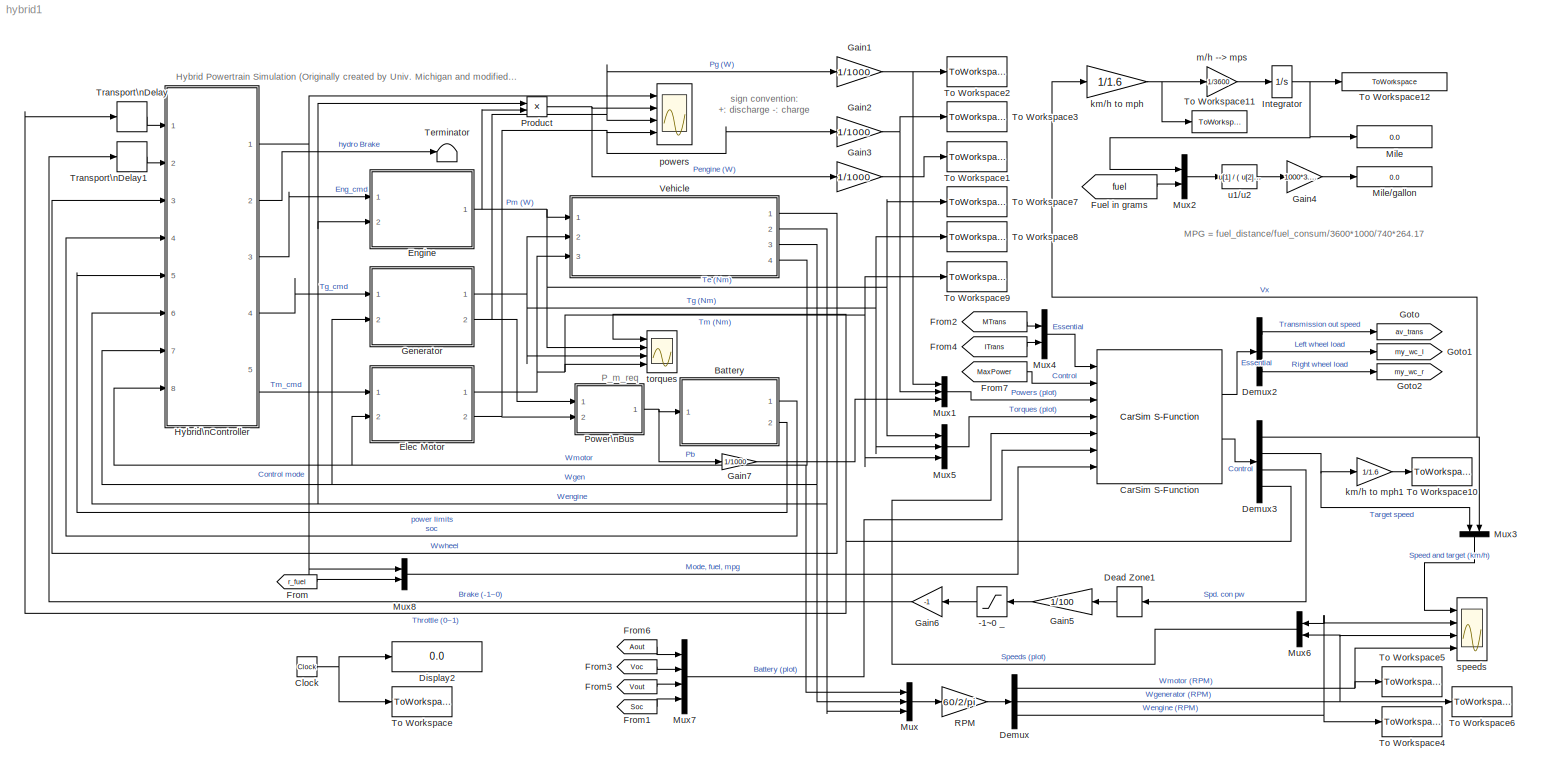
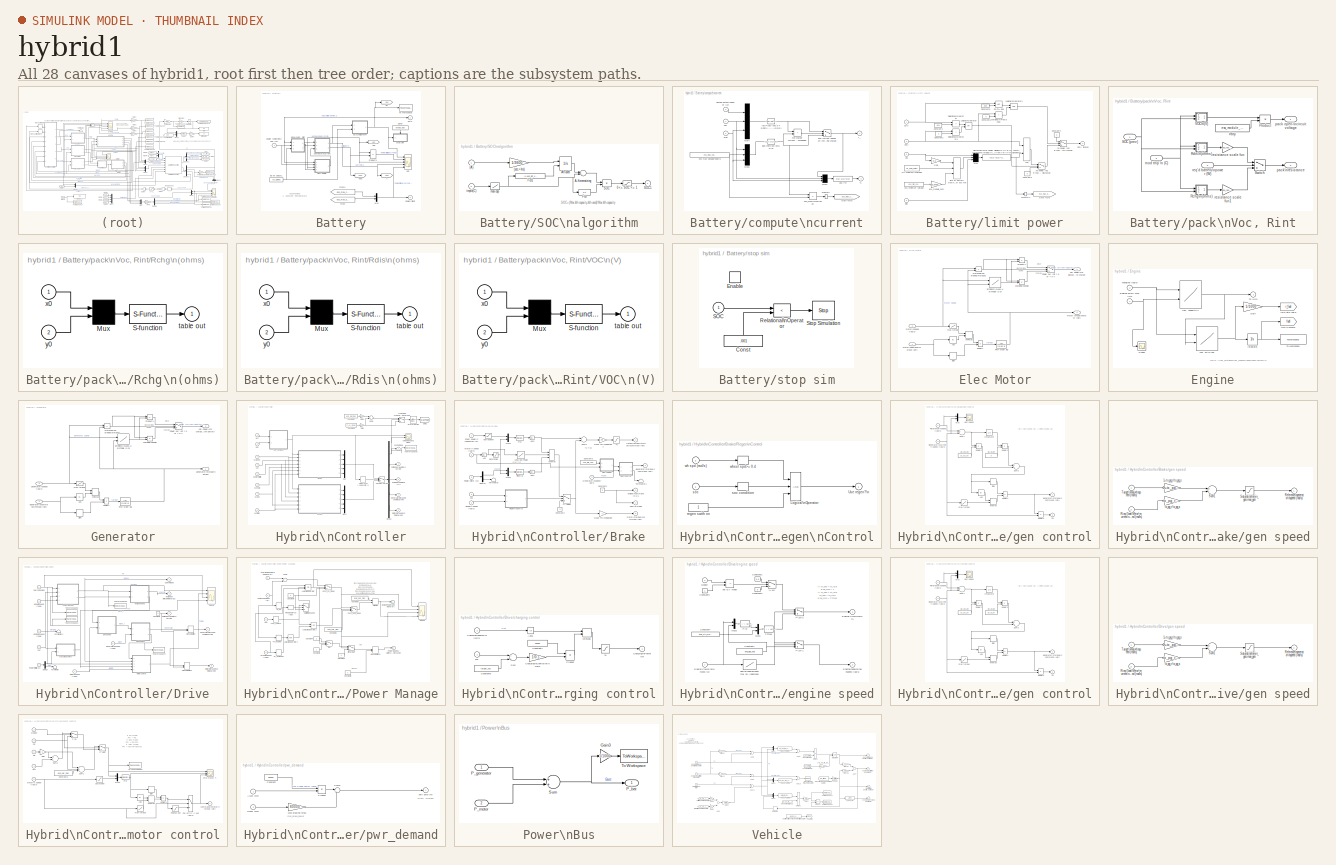
[diagram: thumbnail index - all 28 canvases of the model, root first then tree order]
MODEL hybrid1
KIND model
CONFIG PreLoadFcn = cd Extensions/Simulink/hybrid1	\nhybrid1_sim_init	\ncd ../../..
BLOCK [Saturate] -1~0 _
  InputPortMap = u0
  LowerLimit = -1
  Ports = [1, 1]
  SID = 441
  UpperLimit = 0
BLOCK [SubSystem] Battery
  Ports = [1, 2]
  RequestExecContextInheritance = off
  SID = 1
  ShowPortLabels = none
BLOCK [Goto] Battery/A
  GotoTag = Aout
  SID = 473
  TagVisibility = global
BLOCK [Constant] Battery/Const
  SID = 3
  Value = enable_stop
BLOCK [From] Battery/From
  CloseFcn = tagdialog Close
  GotoTag = ess_max_dis_pwr
  SID = 4
  TagVisibility = global
BLOCK [From] Battery/From1
  CloseFcn = tagdialog Close
  GotoTag = ess_max_chg_pwr
  SID = 5
  TagVisibility = global
BLOCK [Mux] Battery/Mux
  DisplayOption = bar
  Inputs = 2
  Ports = [2, 1]
  SID = 6
BLOCK [Outport] Battery/Power\nlimit
  IconDisplay = Port number
  InitialOutput = 0
  Port = 2
  SID = 17
BLOCK [Product] Battery/Product1
  Inputs = /*
  Ports = [2, 1]
  RndMeth = Floor
  SID = 7
BLOCK [Outport] Battery/SOC
  IconDisplay = Port number
  InitialOutput = 0
  SID = 16
BLOCK [SubSystem] Battery/SOC\nalgorithm
  AncestorBlock = lib_energy_storage/Ess Choices/energy\nstorage <ess>/SOC\nalgorithm
  Ports = [2, 1]
  RequestExecContextInheritance = off
  SID = 8
  ShowPortLabels = none
BLOCK [Inport] Battery/SOC\nalgorithm/(A)
  IconDisplay = Port number
  SID = 8:1
BLOCK [Gain] Battery/SOC\nalgorithm/(sec->hrs)
  Gain = 1/3600
  SID = 8:3
BLOCK [Saturate] Battery/SOC\nalgorithm/0 <= SOC <= 1
  InputPortMap = u0
  LowerLimit = 0
  Ports = [1, 1]
  SID = 8:4
  UpperLimit = 1
BLOCK [Sum] Battery/SOC\nalgorithm/A-h\nremaining
  Inputs = -+
  Ports = [2, 1]
  SID = 8:5
BLOCK [Integrator] Battery/SOC\nalgorithm/Ah used
  InitialCondition = (1-ess_init_soc)*ess_max_ah_cap
  InitialConditionSource = external
  Ports = [2, 1]
  SID = 8:6
BLOCK [Fcn] Battery/SOC\nalgorithm/Fcn
  Expr = 1/u
  SID = 8:7
BLOCK [Fcn] Battery/SOC\nalgorithm/Fcn1
  Expr = (1-ess_init_soc)*u
  SID = 8:8
BLOCK [Product] Battery/SOC\nalgorithm/SOC
  Ports = [2, 1]
  RndMeth = Floor
  SID = 8:9
BLOCK [Outport] Battery/SOC\nalgorithm/SOC1
  IconDisplay = Port number
  InitialOutput = 0
  SID = 8:11
BLOCK [Lookup] Battery/SOC\nalgorithm/max cap
  InputValues = ess_tmp
  SID = 8:10
  Table = ess_max_ah_cap*ess_cap_scale
BLOCK [Inport] Battery/SOC\nalgorithm/tmp\n(C)
  IconDisplay = Port number
  Port = 2
  SID = 8:2
BLOCK [Goto] Battery/So
  GotoTag = Soc
  SID = 474
  TagVisibility = global
BLOCK [ToWorkspace] Battery/To Workspace
  MaxDataPoints = inf
  Ports = [1]
  SID = 9
  SampleTime = time_step
  VariableName = output_soc
BLOCK [Goto] Battery/Voc
  GotoTag = Voc
  SID = 471
  TagVisibility = global
BLOCK [Goto] Battery/Vout
  GotoTag = Vout
  SID = 472
  TagVisibility = global
BLOCK [Scope] Battery/bat
  DataFormat = StructureWithTime
  Floating = off
  LimitDataPoints = off
  NumInputPorts = 5
  Ports = [5]
  SID = 10
  SampleTime = 0
  TimeRange = 30
  YMax = 0.6200000000000001~1.2~309.2~100~50000
  YMin = 0.5300000000000001~0.6000000000000001~308.8~-50~-50000
BLOCK [SubSystem] Battery/compute\ncurrent
  AncestorBlock = lib_energy_storage/Ess Choices/energy\nstorage <ess>/compute\ncurrent
  Ports = [3, 2]
  RequestExecContextInheritance = off
  SID = 11
  ShowPortLabels = none
BLOCK [Goto] Battery/compute\ncurrent/Goto <cs>2
  GotoTag = ess_max_chg_pwr
  SID = 11:4
  TagVisibility = global
BLOCK [Outport] Battery/compute\ncurrent/I_
  IconDisplay = Port number
  InitialOutput = 0
  SID = 11:16
BLOCK [Fcn] Battery/compute\ncurrent/Ibty=(Voc-(Voc^2-4RPbty)^.5)\n       -----------------------------\n(2*R)
  Expr = (u[2]-(u[2]^2-4*u[1]*u[3])^.5)/(2*u[3])
  SID = 11:5
BLOCK [Memory] Battery/compute\ncurrent/Memory
  SID = 11:6
BLOCK [Mux] Battery/compute\ncurrent/Mux3
  Inputs = 3
  Ports = [3, 1]
  SID = 11:7
BLOCK [Mux] Battery/compute\ncurrent/Mux4
  Inputs = 3
  Ports = [3, 1]
  SID = 11:8
BLOCK [Mux] Battery/compute\ncurrent/Mux5
  Inputs = 3
  Ports = [3, 1]
  SID = 11:9
BLOCK [Product] Battery/compute\ncurrent/Pch_max=Imax*Vmax
  Ports = [2, 1]
  RndMeth = Floor
  SID = 11:10
BLOCK [Inport] Battery/compute\ncurrent/Rint
  IconDisplay = Port number
  Port = 2
  SID = 11:2
BLOCK [Outport] Battery/compute\ncurrent/V_
  IconDisplay = Port number
  InitialOutput = 0
  Port = 2
  SID = 11:17
BLOCK [Inport] Battery/compute\ncurrent/Voc
  IconDisplay = Port number
  SID = 11:1
BLOCK [Fcn] Battery/compute\ncurrent/Voc-I*R
  Expr = u[2]-u[1]*u[3]
  SID = 11:11
BLOCK [Constant] Battery/compute\ncurrent/ess max voltage*#batts
  SID = 11:12
  Value = ess_max_volts*ess_module_num
BLOCK [Fcn] Battery/compute\ncurrent/iabs min=(Voc-Vmax)//R
  Expr = (u(1)-u(2))/u(3)
  SID = 11:13
BLOCK [Switch] Battery/compute\ncurrent/limit current based on \nmax voltage during charge
  SID = 11:14
  Threshold = eps
BLOCK [Inport] Battery/compute\ncurrent/limited output\npower (W)
  IconDisplay = Port number
  Port = 3
  SID = 11:3
BLOCK [RelationalOperator] Battery/compute\ncurrent/min charge current\nnot exceeded
  Operator = >
  Ports = [2, 1]
  SID = 11:15
BLOCK [Constant] Battery/do ex calcs?1
  SID = 12
  Value = ess_fixtemp
BLOCK [SubSystem] Battery/limit power
  AncestorBlock = lib_energy_storage/Ess Choices/energy\nstorage <ess>/limit power
  Ports = [4, 1]
  RequestExecContextInheritance = off
  SID = 13
  ShowPortLabels = none
BLOCK [Constant] Battery/limit power/Constant1
  SID = 13:5
  Value = eps
BLOCK [Constant] Battery/limit power/Constant2
  SID = 13:6
  Value = 0
BLOCK [Constant] Battery/limit power/Constant3
  SID = 13:7
  Value = 0
BLOCK [Constant] Battery/limit power/Constant4
  SID = 13:8
  Value = 0
BLOCK [Constant] Battery/limit power/Constant5
  SID = 13:9
  Value = .999
BLOCK [Constant] Battery/limit power/Constant6
  SID = 13:10
  Value = 0
BLOCK [Gain] Battery/limit power/Gain
  Gain = 0.5
  SID = 13:11
BLOCK [Goto] Battery/limit power/Goto <cs>2
  GotoTag = ess_max_dis_pwr
  SID = 13:12
  TagVisibility = global
BLOCK [Logic] Battery/limit power/Logical\nOperator
  Operator = OR
  Ports = [2, 1]
  SID = 13:13
BLOCK [Logic] Battery/limit power/Logical\nOperator1
  Ports = [2, 1]
  SID = 13:14
BLOCK [Memory] Battery/limit power/Memory1
  SID = 13:15
BLOCK [Mux] Battery/limit power/Mux
  Inputs = 3
  Ports = [3, 1]
  SID = 13:16
BLOCK [Inport] Battery/limit power/Pbty
  IconDisplay = Port number
  Port = 2
  SID = 13:2
BLOCK [Outport] Battery/limit power/Pbty, limited
  IconDisplay = Port number
  InitialOutput = 0
  SID = 13:29
BLOCK [RelationalOperator] Battery/limit power/Relational\nOperator
  Operator = >
  Ports = [2, 1]
  SID = 13:17
BLOCK [RelationalOperator] Battery/limit power/Relational\nOperator3
  Operator = <
  Ports = [2, 1]
  SID = 13:18
BLOCK [Inport] Battery/limit power/Rint
  IconDisplay = Port number
  Port = 4
  SID = 13:4
BLOCK [Inport] Battery/limit power/SOC
  IconDisplay = Port number
  SID = 13:1
BLOCK [RelationalOperator] Battery/limit power/SOC>=.999
  Ports = [2, 1]
  SID = 13:19
BLOCK [Inport] Battery/limit power/Voc
  IconDisplay = Port number
  Port = 3
  SID = 13:3
BLOCK [RelationalOperator] Battery/limit power/charging\n(Preq is neg)
  Operator = <
  Ports = [2, 1]
  SID = 13:20
BLOCK [Fcn] Battery/limit power/discharge\nmax power allowed\n(-0.1 is for safety, to prevent\ntaking the square of a tiny\n-ive # in I=I(P) elsewhere)
  Expr = (u[1]-u[2])*u[2]/u[3]-0.1
  SID = 13:21
BLOCK [Constant] Battery/limit power/ess minimum voltage
  SID = 13:22
  Value = ess_min_volts
BLOCK [Gain] Battery/limit power/ess_module_num
  Gain = ess_module_num
  SID = 13:23
BLOCK [MinMax] Battery/limit power/limit by battery max\nor min mc voltage\nor ess min
  Function = max
  Inputs = 3
  Ports = [3, 1]
  SID = 13:24
BLOCK [Constant] Battery/limit power/mc minimum\nvoltage
  SID = 13:25
  Value = m_min_volts
BLOCK [MinMax] Battery/limit power/min
  Inputs = 2
  Ports = [2, 1]
  SID = 13:26
BLOCK [Switch] Battery/limit power/no power req if\nSOC<0 and trying \nto discharge
  SID = 13:27
  Threshold = eps
BLOCK [Switch] Battery/limit power/no power req if\nSOC>.999 and trying \nto charge
  SID = 13:28
  Threshold = eps
BLOCK [SubSystem] Battery/pack\nVoc, Rint
  AncestorBlock = lib_energy_storage/Ess Choices/energy\nstorage <ess>/pack\nVoc, Rint
  Ports = [3, 2]
  RequestExecContextInheritance = off
  SID = 14
  ShowPortLabels = none
BLOCK [Constant] Battery/pack\nVoc, Rint/#bty
  SID = 14:4
  Value = ess_module_num
BLOCK [Product] Battery/pack\nVoc, Rint/Product
  Ports = [2, 1]
  RndMeth = Floor
  SID = 14:5
BLOCK [SubSystem] Battery/pack\nVoc, Rint/Rchg\n(ohms)
  Ports = [2, 1]
  RequestExecContextInheritance = off
  SID = 14:6
  ShowPortLabels = none
BLOCK [Mux] Battery/pack\nVoc, Rint/Rchg\n(ohms)/Mux
  Inputs = 2
  Ports = [2, 1]
  SID = 14:9
BLOCK [S-Function] Battery/pack\nVoc, Rint/Rchg\n(ohms)/S-function
  FunctionName = sftable2
  Parameters = xindex, yindex, table
  Ports = [1, 1]
  SID = 14:10
BLOCK [Outport] Battery/pack\nVoc, Rint/Rchg\n(ohms)/table out
  IconDisplay = Port number
  InitialOutput = 0
  SID = 14:11
BLOCK [Inport] Battery/pack\nVoc, Rint/Rchg\n(ohms)/x0
  IconDisplay = Port number
  SID = 14:7
BLOCK [Inport] Battery/pack\nVoc, Rint/Rchg\n(ohms)/y0
  IconDisplay = Port number
  Port = 2
  SID = 14:8
BLOCK [SubSystem] Battery/pack\nVoc, Rint/Rdis\n(ohms)
  Ports = [2, 1]
  RequestExecContextInheritance = off
  SID = 14:12
  ShowPortLabels = none
BLOCK [Mux] Battery/pack\nVoc, Rint/Rdis\n(ohms)/Mux
  Inputs = 2
  Ports = [2, 1]
  SID = 14:15
BLOCK [S-Function] Battery/pack\nVoc, Rint/Rdis\n(ohms)/S-function
  FunctionName = sftable2
  Parameters = xindex, yindex, table
  Ports = [1, 1]
  SID = 14:16
BLOCK [Outport] Battery/pack\nVoc, Rint/Rdis\n(ohms)/table out
  IconDisplay = Port number
  InitialOutput = 0
  SID = 14:17
BLOCK [Inport] Battery/pack\nVoc, Rint/Rdis\n(ohms)/x0
  IconDisplay = Port number
  SID = 14:13
BLOCK [Inport] Battery/pack\nVoc, Rint/Rdis\n(ohms)/y0
  IconDisplay = Port number
  Port = 2
  SID = 14:14
BLOCK [Inport] Battery/pack\nVoc, Rint/SOC (prev)
  IconDisplay = Port number
  SID = 14:1
BLOCK [Switch] Battery/pack\nVoc, Rint/Switch
  SID = 14:18
BLOCK [SubSystem] Battery/pack\nVoc, Rint/VOC\n(V)
  Ports = [2, 1]
  RequestExecContextInheritance = off
  SID = 14:19
  ShowPortLabels = none
BLOCK [Mux] Battery/pack\nVoc, Rint/VOC\n(V)/Mux
  Inputs = 2
  Ports = [2, 1]
  SID = 14:22
BLOCK [S-Function] Battery/pack\nVoc, Rint/VOC\n(V)/S-function
  FunctionName = sftable2
  Parameters = xindex, yindex, table
  Ports = [1, 1]
  SID = 14:23
BLOCK [Outport] Battery/pack\nVoc, Rint/VOC\n(V)/table out
  IconDisplay = Port number
  InitialOutput = 0
  SID = 14:24
BLOCK [Inport] Battery/pack\nVoc, Rint/VOC\n(V)/x0
  IconDisplay = Port number
  SID = 14:20
BLOCK [Inport] Battery/pack\nVoc, Rint/VOC\n(V)/y0
  IconDisplay = Port number
  Port = 2
  SID = 14:21
BLOCK [Inport] Battery/pack\nVoc, Rint/mod tmp \n (C)
  IconDisplay = Port number
  Port = 3
  SID = 14:3
BLOCK [Outport] Battery/pack\nVoc, Rint/pack open-\ncircuit voltage
  IconDisplay = Port number
  InitialOutput = 0
  SID = 14:27
BLOCK [Outport] Battery/pack\nVoc, Rint/pack\nresistance
  IconDisplay = Port number
  InitialOutput = 0
  Port = 2
  SID = 14:28
BLOCK [Inport] Battery/pack\nVoc, Rint/req'd battery\npower (W)
  IconDisplay = Port number
  Port = 2
  SID = 14:2
BLOCK [Gain] Battery/pack\nVoc, Rint/resistance scale fun
  Gain = ess_res_scale_fun(ess_res_scale_coef,ess_module_num,ess_cap_scale)
  SID = 14:25
BLOCK [Gain] Battery/pack\nVoc, Rint/resistance scale fun1
  Gain = ess_res_scale_fun(ess_res_scale_coef,ess_module_num,ess_cap_scale)
  SID = 14:26
BLOCK [Inport] Battery/power req'd\ninto bus (W)
  IconDisplay = Port number
  SID = 2
BLOCK [SubSystem] Battery/stop sim
  AncestorBlock = lib_energy_storage/Ess Choices/energy\nstorage <ess>/stop sim
  Ports = [1, 0, 1]
  RequestExecContextInheritance = off
  SID = 15
  TreatAsAtomicUnit = on
BLOCK [Constant] Battery/stop sim/Const
  SID = 15:3
  Value = .001
BLOCK [EnablePort] Battery/stop sim/Enable
  Ports = []
  SID = 15:2
BLOCK [RelationalOperator] Battery/stop sim/Relational\nOperator
  Operator = <
  Ports = [2, 1]
  SID = 15:4
BLOCK [Inport] Battery/stop sim/SOC
  IconDisplay = Port number
  SID = 15:1
BLOCK [Stop] Battery/stop sim/Stop Simulation
  SID = 15:5
BLOCK [Reference] CarSim S-Function  REF=Solver_SF/CarSim S-Function
  Ports = [7, 2]
  Priority = 1
  SID = 229
  SIMFILE = simfile.sim
  SourceBlock = Solver_SF/CarSim S-Function
  SourceType = Vehicle math model library
BLOCK [Clock] Clock
  SID = 19
BLOCK [DeadZone] Dead Zone1
  SID = 442
  UpperValue = 0
BLOCK [Demux] Demux
  Outputs = 3
  Ports = [1, 3]
  SID = 20
BLOCK [Demux] Demux2
  DisplayOption = bar
  Outputs = 3
  Ports = [1, 3]
  SID = 467
BLOCK [Demux] Demux3
  DisplayOption = bar
  Ports = [1, 4]
  SID = 468
BLOCK [Display] Display2
  Decimation = 1
  Ports = [1]
  SID = 23
BLOCK [SubSystem] Elec Motor
  Ports = [2, 2]
  RequestExecContextInheritance = off
  SID = 72
BLOCK [Abs] Elec Motor/Abs
  SID = 75
BLOCK [Lookup2D] Elec Motor/Efficiency\nLook-Up\nTable (2-D)
  ColumnIndex = m_map_trq
  RowIndex = m_map_spd
  SID = 76
  Table = m_eff_map
BLOCK [TransferFcn] Elec Motor/First-order lag
  Denominator = [0.05 1]
  SID = 77
BLOCK [MinMax] Elec Motor/MinMax
  Inputs = 2
  Ports = [2, 1]
  SID = 78
BLOCK [Inport] Elec Motor/Motor\ndemand\nTorque (Nm)
  IconDisplay = Port number
  SID = 73
BLOCK [Switch] Elec Motor/Power out \nis > 0 or < 0 ?
  SID = 79
BLOCK [Product] Elec Motor/Product1
  Inputs = */
  Ports = [2, 1]
  RndMeth = Floor
  SID = 80
BLOCK [Signum] Elec Motor/Sign
  SID = 81
BLOCK [Product] Elec Motor/charging\npower
  Ports = [2, 1]
  RndMeth = Floor
  SID = 82
BLOCK [Lookup] Elec Motor/max torque
  InputValues = m_map_spd
  SID = 83
  Table = m_max_trq
BLOCK [Outport] Elec Motor/motor torque\noutput (Nm)
  IconDisplay = Port number
  InitialOutput = 0
  SID = 86
BLOCK [Inport] Elec Motor/motor\nspeed (rad//s)
  IconDisplay = Port number
  Port = 2
  SID = 74
BLOCK [Product] Elec Motor/motoring\nor braking\ntorque2
  Ports = [2, 1]
  RndMeth = Floor
  SID = 84
BLOCK [Outport] Elec Motor/net Power\n>0 discharge \n<0 charge
  IconDisplay = Port number
  InitialOutput = 0
  Port = 2
  SID = 87
BLOCK [Product] Elec Motor/power1
  Ports = [2, 1]
  RndMeth = Floor
  SID = 85
BLOCK [SubSystem] Engine
  Ports = [2, 1]
  RequestExecContextInheritance = off
  SID = 91
BLOCK [Inport] Engine/Engine on//off cmd (1//0)
  IconDisplay = Port number
  SID = 92
BLOCK [Gain] Engine/Gain
  Gain = 1/1000
  OutDataTypeStr = Inherit: Inherit via internal rule
  ParamDataTypeStr = Inherit: Inherit via internal rule
  SID = 490
  SaturateOnIntegerOverflow = off
BLOCK [Integrator] Engine/Integrator
  LowerSaturationLimit = 0
  Ports = [1, 1]
  SID = 94
  UpperSaturationLimit = 20.5
BLOCK [Scope] Engine/Scope
  Floating = off
  LimitDataPoints = off
  NumInputPorts = 1
  Ports = [1]
  SID = 381
  SaveName = ScopeData13
BLOCK [Outport] Engine/Te (Nm)
  IconDisplay = Port number
  SID = 99
BLOCK [ToWorkspace] Engine/To Workspace
  MaxDataPoints = inf
  Ports = [1]
  SID = 95
  SampleTime = time_step
  VariableName = fuel_consum_in_g
BLOCK [Lookup2D] Engine/We, Te to fuel
  ColumnIndex = eng_consum_trq
  RowIndex = eng_consum_spd
  SID = 96
  Table = eng_consum_fuel
BLOCK [Inport] Engine/Wengine (rad//s)
  IconDisplay = Port number
  Port = 2
  SID = 93
BLOCK [Lookup2D] Engine/fuel, speed to T
  ColumnIndex = eng_map_fuel
  RowIndex = eng_map_spd
  SID = 97
  Table = eng_map_trq
BLOCK [Goto] Engine/fule in grams
  GotoTag = fuel
  SID = 98
  TagVisibility = global
BLOCK [Goto] Engine/fule rate (kg//s)
  GotoTag = r_fuel
  SID = 484
  TagVisibility = global
BLOCK [From] From
  GotoTag = r_fuel
  SID = 485
  TagVisibility = global
BLOCK [From] From1
  GotoTag = Soc
  SID = 479
  TagVisibility = global
BLOCK [From] From2
  GotoTag = MTrans
  SID = 236
  TagVisibility = global
BLOCK [From] From3
  GotoTag = Voc
  SID = 480
  TagVisibility = global
BLOCK [From] From4
  GotoTag = ITrans
  SID = 342
  TagVisibility = global
BLOCK [From] From5
  GotoTag = Vout
  SID = 481
  TagVisibility = global
BLOCK [From] From6
  GotoTag = Aout
  SID = 482
  TagVisibility = global
BLOCK [From] From7
  GotoTag = MaxPower
  SID = 386
  TagVisibility = global
BLOCK [From] Fuel in grams
  CloseFcn = tagdialog Close
  GotoTag = fuel
  SID = 102
  TagVisibility = global
BLOCK [Gain] Gain1
  Gain = 1/1000
  SID = 104
BLOCK [Gain] Gain2
  Gain = 1/1000
  SID = 105
BLOCK [Gain] Gain3
  Gain = 1/1000
  SID = 106
BLOCK [Gain] Gain4
  Gain = 1000*3.8*0.75
  SID = 107
BLOCK [Gain] Gain5
  Gain = 1/100
  SID = 443
BLOCK [Gain] Gain6
  Gain = -1
  SID = 444
BLOCK [Gain] Gain7
  Gain = 1/1000
  SID = 470
BLOCK [SubSystem] Generator
  Ports = [2, 2]
  RequestExecContextInheritance = off
  SID = 108
BLOCK [Abs] Generator/Abs
  SID = 111
BLOCK [Lookup2D] Generator/Efficiency\nLook-Up\nTable (2-D)
  ColumnIndex = g_map_trq
  RowIndex = g_map_spd
  SID = 112
  Table = g_eff_map
BLOCK [TransferFcn] Generator/First-order lag
  Denominator = [0.05 1]
  SID = 113
BLOCK [MinMax] Generator/MinMax
  Inputs = 2
  Ports = [2, 1]
  SID = 114
BLOCK [Switch] Generator/Power out \nis > 0 or < 0 ?
  SID = 115
BLOCK [Product] Generator/Product1
  Inputs = */
  Ports = [2, 1]
  RndMeth = Floor
  SID = 116
BLOCK [Signum] Generator/Sign
  SID = 117
BLOCK [Product] Generator/charging\npower
  Ports = [2, 1]
  RndMeth = Floor
  SID = 118
BLOCK [Inport] Generator/generator\ncommand\nTorque (Nm)
  IconDisplay = Port number
  SID = 109
BLOCK [Inport] Generator/generator\nspeed (rad//s)
  IconDisplay = Port number
  Port = 2
  SID = 110
BLOCK [Outport] Generator/generator\ntorque\noutput
  IconDisplay = Port number
  InitialOutput = 0
  SID = 122
BLOCK [Lookup] Generator/max torque
  InputValues = g_max_spd
  SID = 119
  Table = g_max_trq
BLOCK [Product] Generator/motoring\nor braking\ntorque2
  Ports = [2, 1]
  RndMeth = Floor
  SID = 120
BLOCK [Outport] Generator/net Power\n<0 charge the battery \n>0 discharge the battery
  IconDisplay = Port number
  InitialOutput = 0
  Port = 2
  SID = 123
BLOCK [Product] Generator/power1
  Ports = [2, 1]
  RndMeth = Floor
  SID = 121
BLOCK [Goto] Goto
  GotoTag = av_trans
  SID = 241
  TagVisibility = global
BLOCK [Goto] Goto1
  GotoTag = my_wc_l
  SID = 242
  TagVisibility = global
BLOCK [Goto] Goto2
  GotoTag = my_wc_r
  SID = 243
  TagVisibility = global
BLOCK [SubSystem] Hybrid\nController
  Ports = [8, 5]
  RequestExecContextInheritance = off
  SID = 127
  ShowPortLabels = none
BLOCK [Switch] Hybrid\nController/1: drive\n-1: brake
  InputSameDT = off
  SID = 142
BLOCK [Relay] Hybrid\nController/>0: on (1)\n< (-3000): off (-1)
  OffOutputValue = -1
  OffSwitchValue = -3000
  OnSwitchValue = 0
  SID = 408
BLOCK [Switch] Hybrid\nController/>= 2: engine or\nengine + motor;\n< 2: motor only or\nregen brake
  InputSameDT = off
  SID = 411
  Threshold = 2
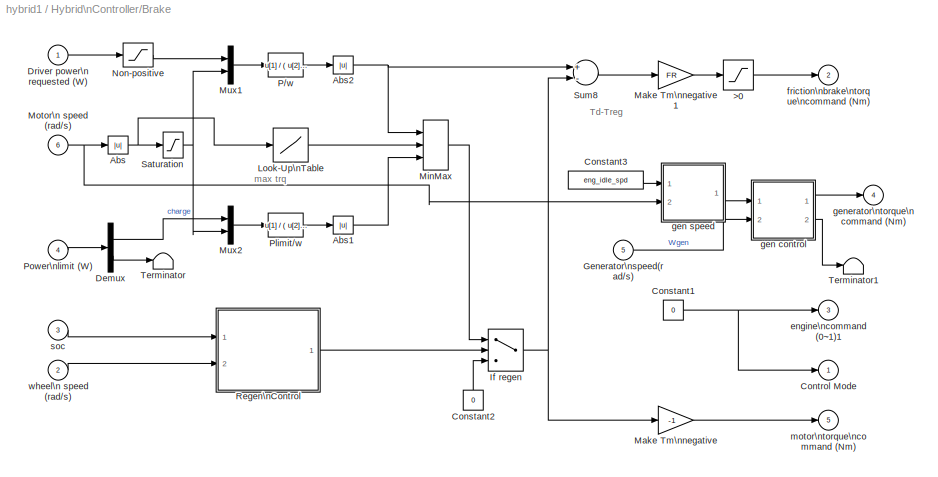
BLOCK [SubSystem] Hybrid\nController/Brake
  AncestorBlock = lib_controls/<vc> prius/Coordinated\n Controller/max engine\nefficiency point
  Ports = [6, 5]
  RequestExecContextInheritance = off
  SID = 136
  ShowPortLabels = none
BLOCK [Saturate] Hybrid\nController/Brake/>0
  InputPortMap = u0
  LowerLimit = 0
  Ports = [1, 1]
  SID = 136:6
  UpperLimit = 10000
BLOCK [Abs] Hybrid\nController/Brake/Abs
  SID = 136:7
BLOCK [Abs] Hybrid\nController/Brake/Abs1
  SID = 136:8
BLOCK [Abs] Hybrid\nController/Brake/Abs2
  SID = 136:9
BLOCK [Constant] Hybrid\nController/Brake/Constant1
  SID = 136:10
  Value = 0
BLOCK [Constant] Hybrid\nController/Brake/Constant2
  SID = 136:11
  Value = 0
BLOCK [Constant] Hybrid\nController/Brake/Constant3
  SID = 136:49
  Value = eng_idle_spd
BLOCK [Outport] Hybrid\nController/Brake/Control Mode
  IconDisplay = Port number
  SID = 136:33
BLOCK [Demux] Hybrid\nController/Brake/Demux
  Outputs = 2
  Ports = [1, 2]
  SID = 136:12
BLOCK [Inport] Hybrid\nController/Brake/Driver power\n requested (W)
  IconDisplay = Port number
  SID = 136:1
BLOCK [Inport] Hybrid\nController/Brake/Generator\nspeed(rad//s)
  IconDisplay = Port number
  Port = 5
  SID = 136:5
BLOCK [Switch] Hybrid\nController/Brake/If regen
  SID = 136:13
  Threshold = 0.5
BLOCK [Lookup] Hybrid\nController/Brake/Look-Up\nTable
  InputValues = m_map_spd
  SID = 136:14
  Table = m_max_trq
BLOCK [Gain] Hybrid\nController/Brake/Make Tm\nnegative
  Gain = -1
  SID = 136:15
BLOCK [Gain] Hybrid\nController/Brake/Make Tm\nnegative1
  Gain = FR
  SID = 136:16
BLOCK [MinMax] Hybrid\nController/Brake/MinMax
  Inputs = 3
  Ports = [3, 1]
  SID = 136:17
BLOCK [Inport] Hybrid\nController/Brake/Motor\n speed (rad//s)
  IconDisplay = Port number
  Port = 6
  SID = 136:50
BLOCK [Mux] Hybrid\nController/Brake/Mux1
  DisplayOption = bar
  Inputs = 2
  Ports = [2, 1]
  SID = 136:18
BLOCK [Mux] Hybrid\nController/Brake/Mux2
  DisplayOption = bar
  Inputs = 2
  Ports = [2, 1]
  SID = 136:19
BLOCK [Saturate] Hybrid\nController/Brake/Non-positive
  InputPortMap = u0
  LowerLimit = -inf
  Ports = [1, 1]
  SID = 136:20
  UpperLimit = 0
BLOCK [Fcn] Hybrid\nController/Brake/P//w
  Expr = u[1] / ( u[2] + eps*(u[2] == 0) )
  SID = 136:21
BLOCK [Fcn] Hybrid\nController/Brake/Plimit//w
  Expr = u[1] / ( u[2] + eps*(u[2] == 0) )
  SID = 136:22
BLOCK [Inport] Hybrid\nController/Brake/Power\nlimit (W)
  IconDisplay = Port number
  Port = 4
  SID = 136:4
BLOCK [SubSystem] Hybrid\nController/Brake/Regen\nControl
  Ports = [2, 1]
  RequestExecContextInheritance = off
  SID = 136:23
BLOCK [Logic] Hybrid\nController/Brake/Regen\nControl/Logical\nOperator
  Inputs = 3
  Ports = [3, 1]
  SID = 136:26
BLOCK [Outport] Hybrid\nController/Brake/Regen\nControl/Use regen?\n
  IconDisplay = Port number
  SID = 136:30
BLOCK [Constant] Hybrid\nController/Brake/Regen\nControl/regen swith on
  SID = 136:27
BLOCK [Inport] Hybrid\nController/Brake/Regen\nControl/soc
  IconDisplay = Port number
  SID = 136:24
BLOCK [Relay] Hybrid\nController/Brake/Regen\nControl/soc condition
  OffOutputValue = 1
  OffSwitchValue = regstop_soc
  OnOutputValue = 0
  OnSwitchValue = regstop_soc*1.1
  SID = 136:28
BLOCK [Inport] Hybrid\nController/Brake/Regen\nControl/wh spd (rad//s)
  IconDisplay = Port number
  Port = 2
  SID = 136:25
BLOCK [Relay] Hybrid\nController/Brake/Regen\nControl/wheel spd>= 0.4
  OffSwitchValue = 0.2
  OnSwitchValue = 0.4
  SID = 136:29
BLOCK [Saturate] Hybrid\nController/Brake/Saturation
  InputPortMap = u0
  LowerLimit = 10
  Ports = [1, 1]
  SID = 136:46
  UpperLimit = inf
BLOCK [Sum] Hybrid\nController/Brake/Sum8
  Inputs = +-
  Ports = [2, 1]
  SID = 136:31
BLOCK [Terminator] Hybrid\nController/Brake/Terminator
  SID = 136:32
BLOCK [Terminator] Hybrid\nController/Brake/Terminator1
  SID = 136:51
BLOCK [Outport] Hybrid\nController/Brake/engine\ncommand (0~1)1
  IconDisplay = Port number
  Port = 3
  SID = 136:35
BLOCK [Outport] Hybrid\nController/Brake/friction\nbrake\ntorque\ncommand (Nm)
  IconDisplay = Port number
  Port = 2
  SID = 136:34
BLOCK [SubSystem] Hybrid\nController/Brake/gen control
  AncestorBlock = lib_controls/<vc> prius/Coordinated\n Controller/max engine\nefficiency point
  Ports = [2, 2]
  RequestExecContextInheritance = off
  SID = 136:47
  ShowPortLabels = none
BLOCK [Abs] Hybrid\nController/Brake/gen control/Abs
  SID = 136:47:3
BLOCK [Inport] Hybrid\nController/Brake/gen control/Generator\ncurrent\n speed (rad//s)
  IconDisplay = Port number
  Port = 2
  SID = 136:47:2
BLOCK [Integrator] Hybrid\nController/Brake/gen control/Integrator
  Ports = [1, 1]
  SID = 136:47:4
BLOCK [MinMax] Hybrid\nController/Brake/gen control/MinMax
  Inputs = 2
  Ports = [2, 1]
  SID = 136:47:5
BLOCK [Mux] Hybrid\nController/Brake/gen control/Mux
  DisplayOption = bar
  Inputs = 2
  Ports = [2, 1]
  SID = 136:47:6
BLOCK [Outport] Hybrid\nController/Brake/gen control/Pg
  IconDisplay = Port number
  Port = 2
  SID = 136:47:19
BLOCK [Inport] Hybrid\nController/Brake/gen control/Reference\nspeed (rad//s)
  IconDisplay = Port number
  SID = 136:47:1
BLOCK [Signum] Hybrid\nController/Brake/gen control/Sign
  SID = 136:47:7
BLOCK [Sum] Hybrid\nController/Brake/gen control/Sum1
  Inputs = +-
  Ports = [2, 1]
  SID = 136:47:8
BLOCK [Sum] Hybrid\nController/Brake/gen control/Sum2
  Ports = [2, 1]
  SID = 136:47:9
BLOCK [Constant] Hybrid\nController/Brake/gen control/gc_ki_on
  SID = 136:47:10
  Value = 0
BLOCK [Constant] Hybrid\nController/Brake/gen control/gc_kp_on
  SID = 136:47:11
  Value = gc_kp_on
BLOCK [Scope] Hybrid\nController/Brake/gen control/gen speed
  DataFormat = StructureWithTime
  Floating = off
  LimitDataPoints = off
  NumInputPorts = 1
  Ports = [1]
  SID = 136:47:12
  SampleTime = 0
  SaveName = ScopeData14
  YMax = 900
  YMin = 50
BLOCK [Outport] Hybrid\nController/Brake/gen control/generator\ntorque\ncommand (Nm)
  IconDisplay = Port number
  SID = 136:47:18
BLOCK [Lookup] Hybrid\nController/Brake/gen control/max torque
  InputValues = g_max_spd
  SID = 136:47:13
  Table = g_max_trq
BLOCK [Product] Hybrid\nController/Brake/gen control/power1
  Ports = [2, 1]
  RndMeth = Floor
  SID = 136:47:14
BLOCK [Product] Hybrid\nController/Brake/gen control/power2
  Ports = [2, 1]
  RndMeth = Floor
  SID = 136:47:15
BLOCK [Product] Hybrid\nController/Brake/gen control/power3
  Ports = [2, 1]
  RndMeth = Floor
  SID = 136:47:16
BLOCK [Product] Hybrid\nController/Brake/gen control/power4
  Ports = [2, 1]
  RndMeth = Floor
  SID = 136:47:17
BLOCK [SubSystem] Hybrid\nController/Brake/gen speed
  AncestorBlock = lib_controls/<vc> prius/Coordinated\n Controller/max engine\nefficiency point
  Ports = [2, 1]
  RequestExecContextInheritance = off
  SID = 136:48
  ShowPortLabels = none
BLOCK [Gain] Hybrid\nController/Brake/gen speed/1+tx_pg_r//tx_pg_s
  Gain = 1+tx_pg_r/tx_pg_s
  SID = 136:48:3
BLOCK [Outport] Hybrid\nController/Brake/gen speed/Reference\ngenerator\nspeed (rad//s)
  IconDisplay = Port number
  SID = 136:48:7
BLOCK [Inport] Hybrid\nController/Brake/gen speed/Ring Gear//Motor\ncurrent\nspeed (rad//s)
  IconDisplay = Port number
  Port = 2
  SID = 136:48:2
BLOCK [Saturate] Hybrid\nController/Brake/gen speed/Saturation\nmin_gen,max_gen
  InputPortMap = u0
  LowerLimit = min_gen_spd*0.9
  Ports = [1, 1]
  SID = 136:48:4
  UpperLimit = max_gen_spd*0.9
BLOCK [Sum] Hybrid\nController/Brake/gen speed/Sum1
  Inputs = +-
  Ports = [2, 1]
  SID = 136:48:5
BLOCK [Inport] Hybrid\nController/Brake/gen speed/Target\nengine\nspeed (rad//s)
  IconDisplay = Port number
  SID = 136:48:1
BLOCK [Gain] Hybrid\nController/Brake/gen speed/tx_pg_r//tx_pg_s
  Gain = tx_pg_r/tx_pg_s
  SID = 136:48:6
BLOCK [Outport] Hybrid\nController/Brake/generator\ntorque\ncommand (Nm)
  IconDisplay = Port number
  Port = 4
  SID = 136:36
BLOCK [Outport] Hybrid\nController/Brake/motor\ntorque\ncommand (Nm)
  IconDisplay = Port number
  Port = 5
  SID = 136:37
BLOCK [Inport] Hybrid\nController/Brake/soc
  IconDisplay = Port number
  Port = 3
  SID = 136:3
BLOCK [Inport] Hybrid\nController/Brake/wheel\n speed (rad//s)
  IconDisplay = Port number
  Port = 2
  SID = 136:2
BLOCK [Constant] Hybrid\nController/Constant1
  SID = 412
  Value = eng_pwr_max
BLOCK [Constant] Hybrid\nController/Constant2
  SID = 414
  Value = P_ev_mode
BLOCK [Demux] Hybrid\nController/Demux
  Outputs = 5
  Ports = [1, 5]
  SID = 137
BLOCK [SubSystem] Hybrid\nController/Drive
  AncestorBlock = lib_controls/<vc> prius/Coordinated\n Controller/max engine\nefficiency point
  Ports = [7, 5]
  RequestExecContextInheritance = off
  SID = 138
  ShowPortLabels = none
BLOCK [Constant] Hybrid\nController/Drive/Constant1
  SID = 138:8
  Value = 0
BLOCK [Outport] Hybrid\nController/Drive/Control Mode
  IconDisplay = Port number
  SID = 138:68
BLOCK [Scope] Hybrid\nController/Drive/Debug
  Floating = off
  LimitDataPoints = off
  NumInputPorts = 4
  Ports = [4]
  SID = 138:81
  SaveName = ScopeData18
  TimeRange = 30
  YMax = 40000~400~60000~10000
  YMin = 0~0~-20000~0
  ZoomMode = yonly
BLOCK [Demux] Hybrid\nController/Drive/Demux
  Outputs = 2
  Ports = [1, 2]
  SID = 138:9
BLOCK [Inport] Hybrid\nController/Drive/Engine\n speed (rad//s)
  IconDisplay = Port number
  Port = 5
  SID = 138:5
BLOCK [Inport] Hybrid\nController/Drive/Generator\n speed (rad//s)
  IconDisplay = Port number
  Port = 6
  SID = 138:6
BLOCK [ManualSwitch] Hybrid\nController/Drive/Manual Switch
  SID = 138:73
BLOCK [ManualSwitch] Hybrid\nController/Drive/Manual Switch1
  SID = 138:74
BLOCK [Inport] Hybrid\nController/Drive/Motor\n speed (rad//s)
  IconDisplay = Port number
  Port = 7
  SID = 138:7
BLOCK [SubSystem] Hybrid\nController/Drive/Power Manage
  Ports = [4, 2]
  RequestExecContextInheritance = off
  SID = 138:10
BLOCK [Relay] Hybrid\nController/Drive/Power Manage/< soc_control
  OffOutputValue = 1
  OffSwitchValue = soc_control
  OnOutputValue = 0
  OnSwitchValue = soc_control*1.055
  SID = 138:78
BLOCK [Relay] Hybrid\nController/Drive/Power Manage/>P_engmax
  OffSwitchValue = P_eng_mode*0.9
  OnSwitchValue = P_eng_mode
  SID = 138:15
BLOCK [Relay] Hybrid\nController/Drive/Power Manage/>P_ev
  OffSwitchValue = P_ev_mode*0.9
  OnSwitchValue = P_ev_mode
  SID = 138:16
BLOCK [Inport] Hybrid\nController/Drive/Power Manage/Charging\npower\ndemand (W)
  IconDisplay = Port number
  Port = 3
  SID = 138:13
BLOCK [Constant] Hybrid\nController/Drive/Power Manage/Constant1
  SID = 138:17
  Value = 3
BLOCK [Constant] Hybrid\nController/Drive/Power Manage/Constant3
  SID = 138:19
  Value = eng_pwr_max
BLOCK [Constant] Hybrid\nController/Drive/Power Manage/Constant4
  SID = 138:20
  Value = 0
BLOCK [Constant] Hybrid\nController/Drive/Power Manage/Constant5
  SID = 138:21
BLOCK [Constant] Hybrid\nController/Drive/Power Manage/Constant6
  SID = 138:22
  Value = eng_pwr_max
BLOCK [Constant] Hybrid\nController/Drive/Power Manage/Constant7
  SID = 138:23
  Value = 2
BLOCK [Constant] Hybrid\nController/Drive/Power Manage/Constant8
  SID = 138:80
  Value = 3
BLOCK [Switch] Hybrid\nController/Drive/Power Manage/Cut off low\nspeed
  SID = 138:85
  Threshold = 0.5
BLOCK [Scope] Hybrid\nController/Drive/Power Manage/Debug
  Floating = off
  LimitDataPoints = off
  NumInputPorts = 4
  Ports = [4]
  SID = 138:82
  SaveName = ScopeData19
  TimeRange = 30
  YMax = 2~80000~2~40000
  YMin = -0~0~-0~0
  ZoomMode = yonly
BLOCK [Outport] Hybrid\nController/Drive/Power Manage/Engine Power\ndemand (W)
  IconDisplay = Port number
  SID = 138:35
BLOCK [Logic] Hybrid\nController/Drive/Power Manage/Logical\nOperator
  AllPortsSameDT = off
  Inputs = 3
  Operator = OR
  Ports = [3, 1]
  SID = 138:24
BLOCK [Logic] Hybrid\nController/Drive/Power Manage/Logical\nOperator1
  AllPortsSameDT = off
  Inputs = 3
  Operator = NOT
  Ports = [1, 1]
  SID = 138:25
BLOCK [Logic] Hybrid\nController/Drive/Power Manage/Logical\nOperator2
  AllPortsSameDT = off
  Operator = OR
  Ports = [2, 1]
  SID = 138:26
BLOCK [ManualSwitch] Hybrid\nController/Drive/Power Manage/Manual Switch1
  SID = 138:79
BLOCK [MinMax] Hybrid\nController/Drive/Power Manage/MinMax
  Inputs = 2
  Ports = [2, 1]
  SID = 138:27
BLOCK [Switch] Hybrid\nController/Drive/Power Manage/Pd>P_eng_mode
  Criteria = u2 ~= 0
  SID = 138:28
  Threshold = 0.5
BLOCK [Switch] Hybrid\nController/Drive/Power Manage/Pd>P_ev_mode
  Criteria = u2 ~= 0
  SID = 138:29
  Threshold = 0.5
BLOCK [Outport] Hybrid\nController/Drive/Power Manage/Power Mode\n1: Motor only\n2: Engine only\n3: Power assist
  IconDisplay = Port number
  Port = 2
  SID = 138:36
BLOCK [Inport] Hybrid\nController/Drive/Power Manage/Power\ndemand (W)
  IconDisplay = Port number
  SID = 138:11
BLOCK [Sum] Hybrid\nController/Drive/Power Manage/Sum2
  Ports = [2, 1]
  SID = 138:31
BLOCK [Relay] Hybrid\nController/Drive/Power Manage/W_engineon
  OffSwitchValue = w_engine_on*0.9
  OnSwitchValue = w_engine_on
  SID = 138:32
BLOCK [Inport] Hybrid\nController/Drive/Power Manage/Wheel\nSpeed (rad//s)
  IconDisplay = Port number
  Port = 4
  SID = 138:14
BLOCK [Switch] Hybrid\nController/Drive/Power Manage/if Eng+Batt
  Criteria = u2 ~= 0
  SID = 138:33
  Threshold = 0.5
BLOCK [Switch] Hybrid\nController/Drive/Power Manage/if Ev
  Criteria = u2 ~= 0
  SID = 138:34
  Threshold = 0.5
BLOCK [Inport] Hybrid\nController/Drive/Power Manage/soc
  IconDisplay = Port number
  Port = 2
  SID = 138:12
BLOCK [Relay] Hybrid\nController/Drive/Power Manage/wheel spd\n> 15 rad//s
  OffSwitchValue = 10
  OnSwitchValue = 15
  SID = 138:84
BLOCK [Inport] Hybrid\nController/Drive/Power\nlimits (W)
  IconDisplay = Port number
  Port = 4
  SID = 138:4
BLOCK [Terminator] Hybrid\nController/Drive/Terminator
  SID = 138:38
BLOCK [Terminator] Hybrid\nController/Drive/Terminator1
  SID = 138:39
BLOCK [ToWorkspace] Hybrid\nController/Drive/To Workspace1
  MaxDataPoints = inf
  Ports = [1]
  SID = 138:40
  SampleTime = time_step
  VariableName = P_ch
BLOCK [ToWorkspace] Hybrid\nController/Drive/To Workspace2
  MaxDataPoints = inf
  Ports = [1]
  SID = 138:41
  SampleTime = time_step
  VariableName = P_d
BLOCK [ToWorkspace] Hybrid\nController/Drive/To Workspace3
  MaxDataPoints = inf
  Ports = [1]
  SID = 138:42
  SampleTime = time_step
  VariableName = P_engine_d
BLOCK [ToWorkspace] Hybrid\nController/Drive/To Workspace4
  MaxDataPoints = inf
  Ports = [1]
  SID = 138:43
  SampleTime = time_step
  VariableName = P_gen_d
BLOCK [SubSystem] Hybrid\nController/Drive/charging control
  AncestorBlock = lib_controls/<vc> prius/Coordinated\n Controller/max engine\nefficiency point
  Ports = [2, 1]
  RequestExecContextInheritance = off
  SID = 138:44
  ShowPortLabels = none
BLOCK [Saturate] Hybrid\nController/Drive/charging control/>0
  InputPortMap = u0
  LowerLimit = 0
  Ports = [1, 1]
  SID = 138:44:3
  UpperLimit = inf
BLOCK [Abs] Hybrid\nController/Drive/charging control/Abs1
  SID = 138:44:4
BLOCK [Gain] Hybrid\nController/Drive/charging control/Charging\nController\nGain
  Gain = 1/0.1
  SID = 138:44:5
BLOCK [Outport] Hybrid\nController/Drive/charging control/Charging\nPower (W)
  IconDisplay = Port number
  SID = 138:44:11
BLOCK [Inport] Hybrid\nController/Drive/charging control/Charging\npower\nlimits
  IconDisplay = Port number
  Port = 2
  SID = 138:44:2
BLOCK [Constant] Hybrid\nController/Drive/charging control/Constant1
  SID = 138:44:6
  Value = 15000
BLOCK [Constant] Hybrid\nController/Drive/charging control/Constant5
  SID = 138:44:7
  Value = target_soc
BLOCK [MinMax] Hybrid\nController/Drive/charging control/MinMax
  Inputs = 2
  Ports = [2, 1]
  SID = 138:44:8
BLOCK [Product] Hybrid\nController/Drive/charging control/Product
  InputSameDT = off
  Ports = [2, 1]
  RndMeth = Floor
  SID = 138:44:9
BLOCK [Sum] Hybrid\nController/Drive/charging control/Sum
  InputSameDT = off
  Inputs = -+
  OutDataTypeStr = Inherit: Inherit via internal rule
  Ports = [2, 1]
  SID = 138:44:10
BLOCK [Inport] Hybrid\nController/Drive/charging control/soc
  IconDisplay = Port number
  SID = 138:44:1
BLOCK [Outport] Hybrid\nController/Drive/engine on off\ncommand (0//1)
  IconDisplay = Port number
  Port = 3
  SID = 138:70
BLOCK [SubSystem] Hybrid\nController/Drive/engine speed
  Ports = [2, 2]
  RequestExecContextInheritance = off
  SID = 138:45
BLOCK [Switch] Hybrid\nController/Drive/engine speed/>= 1W 
  SID = 138:48
  Threshold = 0.5
BLOCK [Switch] Hybrid\nController/Drive/engine speed/>= 1W 1
  SID = 138:49
  Threshold = eng_idle_spd
BLOCK [Switch] Hybrid\nController/Drive/engine speed/>= 1W 2
  SID = 138:50
  Threshold = eng_idle_spd
BLOCK [Constant] Hybrid\nController/Drive/engine speed/Constant1
  SID = 138:51
  Value = eng_idle_spd
BLOCK [Constant] Hybrid\nController/Drive/engine speed/Constant2
  SID = 138:52
  Value = 0.9
BLOCK [Constant] Hybrid\nController/Drive/engine speed/Constant3
  SID = 138:53
  Value = 0
BLOCK [Constant] Hybrid\nController/Drive/engine speed/Constant4
  SID = 138:54
  Value = eng_ctrl_max_trq(1)
BLOCK [Constant] Hybrid\nController/Drive/engine speed/Constant9
  SID = 138:55
BLOCK [Outport] Hybrid\nController/Drive/engine speed/Engine Cmd\n(on//off)
  IconDisplay = Port number
  SID = 138:62
BLOCK [Inport] Hybrid\nController/Drive/engine speed/Engine Power\nDemand (W)
  IconDisplay = Port number
  SID = 138:46
BLOCK [Outport] Hybrid\nController/Drive/engine speed/Engine\noperating\nspeed (rad//s)
  IconDisplay = Port number
  Port = 2
  SID = 138:63
BLOCK [Inport] Hybrid\nController/Drive/engine speed/Mode#
  IconDisplay = Port number
  Port = 2
  SID = 138:47
BLOCK [Mux] Hybrid\nController/Drive/engine speed/Mux1
  DisplayOption = bar
  Inputs = 2
  Ports = [2, 1]
  SID = 138:56
BLOCK [Mux] Hybrid\nController/Drive/engine speed/Mux2
  DisplayOption = bar
  Inputs = 2
  Ports = [2, 1]
  SID = 138:57
BLOCK [Fcn] Hybrid\nController/Drive/engine speed/P//w
  Expr = u[1] / ( u[2] + eps*(u[2] == 0) )
  SID = 138:58
BLOCK [Fcn] Hybrid\nController/Drive/engine speed/T//Tmax
  Expr = u[1] / ( u[2] + eps*(u[2] == 0) )
  SID = 138:59
BLOCK [Lookup] Hybrid\nController/Drive/engine speed/define engine\noptimal speed\nbase on power\ndemand
  InputValues = eng_pwr_opt
  SID = 138:60
  Table = eng_spd_opt
BLOCK [RelationalOperator] Hybrid\nController/Drive/engine speed/not EV mode
  Operator = ~=
  Ports = [2, 1]
  SID = 138:61
BLOCK [Outport] Hybrid\nController/Drive/friction\nbrake\ntorque (Nm)
  IconDisplay = Port number
  Port = 2
  SID = 138:69
BLOCK [SubSystem] Hybrid\nController/Drive/gen control
  AncestorBlock = lib_controls/<vc> prius/Coordinated\n Controller/max engine\nefficiency point
  Ports = [2, 2]
  RequestExecContextInheritance = off
  SID = 138:65
  ShowPortLabels = none
BLOCK [Abs] Hybrid\nController/Drive/gen control/Abs
  SID = 138:65:3
BLOCK [Inport] Hybrid\nController/Drive/gen control/Generator\ncurrent\n speed (rad//s)
  IconDisplay = Port number
  Port = 2
  SID = 138:65:2
BLOCK [Integrator] Hybrid\nController/Drive/gen control/Integrator
  Ports = [1, 1]
  SID = 138:65:4
BLOCK [MinMax] Hybrid\nController/Drive/gen control/MinMax
  Inputs = 2
  Ports = [2, 1]
  SID = 138:65:5
BLOCK [Mux] Hybrid\nController/Drive/gen control/Mux
  DisplayOption = bar
  Inputs = 2
  Ports = [2, 1]
  SID = 138:65:6
BLOCK [Outport] Hybrid\nController/Drive/gen control/Pg
  IconDisplay = Port number
  Port = 2
  SID = 138:65:19
BLOCK [Inport] Hybrid\nController/Drive/gen control/Reference\nspeed (rad//s)
  IconDisplay = Port number
  SID = 138:65:1
BLOCK [Signum] Hybrid\nController/Drive/gen control/Sign
  SID = 138:65:7
BLOCK [Sum] Hybrid\nController/Drive/gen control/Sum1
  Inputs = +-
  Ports = [2, 1]
  SID = 138:65:8
BLOCK [Sum] Hybrid\nController/Drive/gen control/Sum2
  Ports = [2, 1]
  SID = 138:65:9
BLOCK [Constant] Hybrid\nController/Drive/gen control/gc_ki_on
  SID = 138:65:10
  Value = gc_ki_on
BLOCK [Constant] Hybrid\nController/Drive/gen control/gc_kp_on
  SID = 138:65:11
  Value = gc_kp_on
BLOCK [Scope] Hybrid\nController/Drive/gen control/gen speed
  DataFormat = StructureWithTime
  Floating = off
  LimitDataPoints = off
  NumInputPorts = 1
  Ports = [1]
  SID = 138:65:12
  SampleTime = 0
  SaveName = ScopeData14
  YMax = 900
  YMin = 50
BLOCK [Outport] Hybrid\nController/Drive/gen control/generator\ntorque\ncommand (Nm)
  IconDisplay = Port number
  SID = 138:65:18
BLOCK [Lookup] Hybrid\nController/Drive/gen control/max torque
  InputValues = g_max_spd
  SID = 138:65:13
  Table = g_max_trq
BLOCK [Product] Hybrid\nController/Drive/gen control/power1
  Ports = [2, 1]
  RndMeth = Floor
  SID = 138:65:14
BLOCK [Product] Hybrid\nController/Drive/gen control/power2
  Ports = [2, 1]
  RndMeth = Floor
  SID = 138:65:15
BLOCK [Product] Hybrid\nController/Drive/gen control/power3
  Ports = [2, 1]
  RndMeth = Floor
  SID = 138:65:16
BLOCK [Product] Hybrid\nController/Drive/gen control/power4
  Ports = [2, 1]
  RndMeth = Floor
  SID = 138:65:17
BLOCK [SubSystem] Hybrid\nController/Drive/gen speed
  AncestorBlock = lib_controls/<vc> prius/Coordinated\n Controller/max engine\nefficiency point
  Ports = [2, 1]
  RequestExecContextInheritance = off
  SID = 138:66
  ShowPortLabels = none
BLOCK [Gain] Hybrid\nController/Drive/gen speed/1+tx_pg_r//tx_pg_s
  Gain = 1+tx_pg_r/tx_pg_s
  SID = 138:66:3
BLOCK [Outport] Hybrid\nController/Drive/gen speed/Reference\ngenerator\nspeed (rad//s)
  IconDisplay = Port number
  SID = 138:66:7
BLOCK [Inport] Hybrid\nController/Drive/gen speed/Ring Gear//Motor\ncurrent\nspeed (rad//s)
  IconDisplay = Port number
  Port = 2
  SID = 138:66:2
BLOCK [Saturate] Hybrid\nController/Drive/gen speed/Saturation\nmin_gen,max_gen
  InputPortMap = u0
  LowerLimit = min_gen_spd*0.9
  Ports = [1, 1]
  SID = 138:66:4
  UpperLimit = max_gen_spd*0.9
BLOCK [Sum] Hybrid\nController/Drive/gen speed/Sum1
  Inputs = +-
  Ports = [2, 1]
  SID = 138:66:5
BLOCK [Inport] Hybrid\nController/Drive/gen speed/Target\nengine\nspeed (rad//s)
  IconDisplay = Port number
  SID = 138:66:1
BLOCK [Gain] Hybrid\nController/Drive/gen speed/tx_pg_r//tx_pg_s
  Gain = tx_pg_r/tx_pg_s
  SID = 138:66:6
BLOCK [Outport] Hybrid\nController/Drive/generator\ntorque\ncommand (Nm)
  IconDisplay = Port number
  Port = 4
  SID = 138:71
BLOCK [SubSystem] Hybrid\nController/Drive/motor control
  AncestorBlock = lib_controls/<vc> prius/Coordinated\n Controller/max engine\nefficiency point
  Ports = [5, 1]
  RequestExecContextInheritance = off
  SID = 138:67
  ShowPortLabels = none
BLOCK [Abs] Hybrid\nController/Drive/motor control/Abs
  SID = 138:67:6
BLOCK [Constant] Hybrid\nController/Drive/motor control/Constant6
  SID = 138:67:7
  Value = eng_pwr_max
BLOCK [Switch] Hybrid\nController/Drive/motor control/Cut-off\n (< 100 rad//s) 
  SID = 138:67:47
  Threshold = 100
BLOCK [Gain] Hybrid\nController/Drive/motor control/Gain
  Gain = -1
  SID = 138:67:8
BLOCK [MinMax] Hybrid\nController/Drive/motor control/MinMax
  Inputs = 2
  Ports = [2, 1]
  SID = 138:67:9
BLOCK [Inport] Hybrid\nController/Drive/motor control/Mode#
  IconDisplay = Port number
  Port = 2
  SID = 138:67:2
BLOCK [Inport] Hybrid\nController/Drive/motor control/Motor\n speed (rad//s)
  IconDisplay = Port number
  Port = 5
  SID = 138:67:5
BLOCK [Mux] Hybrid\nController/Drive/motor control/Mux2
  DisplayOption = bar
  Inputs = 2
  Ports = [2, 1]
  SID = 138:67:10
BLOCK [Fcn] Hybrid\nController/Drive/motor control/P//w
  Expr = u[1] / ( u[2] + eps*(u[2] == 0) )
  SID = 138:67:11
BLOCK [Inport] Hybrid\nController/Drive/motor control/Pch
  IconDisplay = Port number
  Port = 4
  SID = 138:67:4
BLOCK [Inport] Hybrid\nController/Drive/motor control/Pd
  IconDisplay = Port number
  Port = 3
  SID = 138:67:3
BLOCK [Inport] Hybrid\nController/Drive/motor control/Pg
  IconDisplay = Port number
  SID = 138:67:1
BLOCK [Saturate] Hybrid\nController/Drive/motor control/Positive only
  InputPortMap = u0
  LowerLimit = 0
  Ports = [1, 1]
  SID = 138:67:50
  UpperLimit = inf
BLOCK [Saturate] Hybrid\nController/Drive/motor control/Saturation
  InputPortMap = u0
  LowerLimit = 10
  Ports = [1, 1]
  SID = 138:67:44
  UpperLimit = inf
BLOCK [Signum] Hybrid\nController/Drive/motor control/Sign
  SID = 138:67:12
BLOCK [Sum] Hybrid\nController/Drive/motor control/Sum1
  Inputs = ++-
  Ports = [3, 1]
  SID = 138:67:13
BLOCK [Sum] Hybrid\nController/Drive/motor control/Sum2
  Inputs = +-
  Ports = [2, 1]
  SID = 138:67:14
BLOCK [ToWorkspace] Hybrid\nController/Drive/motor control/To Workspace2
  MaxDataPoints = inf
  Ports = [1]
  SID = 138:67:15
  SampleTime = time_step
  VariableName = P_mot_d
BLOCK [Scope] Hybrid\nController/Drive/motor control/cmd motor T.
  Floating = off
  LimitDataPoints = off
  NumInputPorts = 3
  Ports = [3]
  SID = 138:67:25
  SaveName = ScopeData16
  TimeRange = 30
  YMax = 20000~2000~325
  YMin = -22500~-2000~-75
BLOCK [Outport] Hybrid\nController/Drive/motor control/command\nmotor\ntorque (Nm)
  IconDisplay = Port number
  InitialOutput = 0
  SID = 138:67:20
BLOCK [Switch] Hybrid\nController/Drive/motor control/if Asist
  SID = 138:67:16
  Threshold = 3
BLOCK [Switch] Hybrid\nController/Drive/motor control/if Ev
  SID = 138:67:17
  Threshold = 2
BLOCK [Lookup] Hybrid\nController/Drive/motor control/max torque
  InputValues = m_map_spd
  SID = 138:67:18
  Table = m_max_trq
BLOCK [Product] Hybrid\nController/Drive/motor control/power1
  Ports = [2, 1]
  RndMeth = Floor
  SID = 138:67:19
BLOCK [Outport] Hybrid\nController/Drive/motor\ntorque\ncommand (Nm)
  IconDisplay = Port number
  Port = 5
  SID = 138:72
BLOCK [Inport] Hybrid\nController/Drive/pwr requested
  IconDisplay = Port number
  SID = 138:1
BLOCK [Inport] Hybrid\nController/Drive/soc
  IconDisplay = Port number
  Port = 3
  SID = 138:3
BLOCK [Inport] Hybrid\nController/Drive/wheel\n speed (rad//s)
  IconDisplay = Port number
  Port = 2
  SID = 138:2
BLOCK [TransferFcn] Hybrid\nController/First-order lag
  Denominator = [0.8 1]
  SID = 420
BLOCK [Gain] Hybrid\nController/Gain
  Gain = 1/1000
  OutDataTypeStr = Inherit: Inherit via internal rule
  ParamDataTypeStr = Inherit: Inherit via internal rule
  SID = 417
  SaturateOnIntegerOverflow = off
BLOCK [Gain] Hybrid\nController/Gain1
  Gain = 1/1000
  OutDataTypeStr = Inherit: Inherit via internal rule
  ParamDataTypeStr = Inherit: Inherit via internal rule
  SID = 418
  SaturateOnIntegerOverflow = off
BLOCK [Goto] Hybrid\nController/Goto1
  GotoTag = MaxPower
  SID = 416
  TagVisibility = global
BLOCK [Mux] Hybrid\nController/Mux
  DisplayOption = bar
  Inputs = 5
  Ports = [5, 1]
  SID = 139
BLOCK [Mux] Hybrid\nController/Mux1
  DisplayOption = bar
  Inputs = 5
  Ports = [5, 1]
  SID = 140
BLOCK [Sum] Hybrid\nController/Sum2
  Ports = [2, 1]
  SID = 419
BLOCK [ToWorkspace] Hybrid\nController/To Workspace5
  MaxDataPoints = inf
  Ports = [1]
  SID = 141
  SampleTime = time_step
  VariableName = ControlMode
BLOCK [Inport] Hybrid\nController/Wengin
  IconDisplay = Port number
  Port = 6
  SID = 133
BLOCK [Inport] Hybrid\nController/Wgen
  IconDisplay = Port number
  Port = 7
  SID = 134
BLOCK [Inport] Hybrid\nController/Wmotor
  IconDisplay = Port number
  Port = 8
  SID = 135
BLOCK [Inport] Hybrid\nController/Wwheel
  IconDisplay = Port number
  Port = 3
  SID = 130
BLOCK [Inport] Hybrid\nController/acc
  IconDisplay = Port number
  SID = 128
BLOCK [Outport] Hybrid\nController/control mode
  IconDisplay = Port number
  SID = 153
BLOCK [Inport] Hybrid\nController/dec
  IconDisplay = Port number
  Port = 2
  SID = 129
BLOCK [Outport] Hybrid\nController/engine\ncommand (0~1
  IconDisplay = Port number
  Port = 3
  SID = 155
BLOCK [Outport] Hybrid\nController/friction\nbrake\ntorque (Nm)
  IconDisplay = Port number
  Port = 2
  SID = 154
BLOCK [Outport] Hybrid\nController/generator\ntorque\ncommand (Nm)
  IconDisplay = Port number
  Port = 4
  SID = 156
BLOCK [Outport] Hybrid\nController/motor\ntorque\ncommand (Nm)
  IconDisplay = Port number
  Port = 5
  SID = 462
BLOCK [Inport] Hybrid\nController/power\nlimits
  IconDisplay = Port number
  Port = 5
  SID = 132
BLOCK [Scope] Hybrid\nController/pw demand and mode
  Floating = off
  LimitDataPoints = off
  NumInputPorts = 2
  Ports = [2]
  SID = 391
  SaveName = ScopeData17
  TimeRange = 30
  YMax = 60000~3
  YMin = -10000~0
BLOCK [SubSystem] Hybrid\nController/pwr_demand
  Ports = [2, 1]
  RequestExecContextInheritance = off
  SID = 143
BLOCK [Inport] Hybrid\nController/pwr_demand/Accel cmd
  IconDisplay = Port number
  SID = 144
BLOCK [Constant] Hybrid\nController/pwr_demand/Constant
  SID = 146
  Value = 55000
BLOCK [Inport] Hybrid\nController/pwr_demand/Decel cmd
  IconDisplay = Port number
  Port = 2
  SID = 145
BLOCK [Gain] Hybrid\nController/pwr_demand/Max braking torqu
  Gain = 80000
  SID = 147
BLOCK [Product] Hybrid\nController/pwr_demand/Product
  Ports = [2, 1]
  RndMeth = Floor
  SID = 148
BLOCK [Sum] Hybrid\nController/pwr_demand/Sum6
  IconShape = round
  Inputs = |+-
  Ports = [2, 1]
  SID = 149
BLOCK [Outport] Hybrid\nController/pwr_demand/pwr dmd (W)
  IconDisplay = Port number
  SID = 150
BLOCK [Inport] Hybrid\nController/soc
  IconDisplay = Port number
  Port = 4
  SID = 131
BLOCK [Integrator] Integrator
  LowerSaturationLimit = 0
  Ports = [1, 1]
  SID = 446
BLOCK [Display] Mile
  Decimation = 1
  Ports = [1]
  SID = 22
BLOCK [Display] Mile//gallon
  Decimation = 1
  Ports = [1]
  SID = 21
BLOCK [Mux] Mux
  DisplayOption = bar
  Inputs = 3
  Ports = [3, 1]
  SID = 157
BLOCK [Mux] Mux1
  DisplayOption = bar
  Inputs = 3
  Ports = [3, 1]
  SID = 469
BLOCK [Mux] Mux2
  DisplayOption = bar
  Inputs = 2
  Ports = [2, 1]
  SID = 158
BLOCK [Mux] Mux3
  DisplayOption = bar
  Inputs = 2
  Ports = [2, 1]
  SID = 457
BLOCK [Mux] Mux4
  DisplayOption = bar
  Inputs = 2
  Ports = [2, 1]
  SID = 463
BLOCK [Mux] Mux5
  DisplayOption = bar
  Inputs = 3
  Ports = [3, 1]
  SID = 464
BLOCK [Mux] Mux6
  DisplayOption = bar
  Inputs = 2
  Ports = [2, 1]
  SID = 465
BLOCK [Mux] Mux7
  DisplayOption = bar
  Ports = [4, 1]
  SID = 483
BLOCK [Mux] Mux8
  DisplayOption = bar
  Inputs = 2
  Ports = [2, 1]
  SID = 489
BLOCK [SubSystem] Power\nBus
  Ports = [2, 1]
  RequestExecContextInheritance = off
  SID = 159
BLOCK [Gain] Power\nBus/Gain3
  Gain = 1/1000
  SID = 162
BLOCK [Outport] Power\nBus/P_bat
  IconDisplay = Port number
  InitialOutput = 0
  SID = 165
BLOCK [Inport] Power\nBus/P_generator
  IconDisplay = Port number
  SID = 160
BLOCK [Inport] Power\nBus/P_motor
  IconDisplay = Port number
  Port = 2
  SID = 161
BLOCK [Sum] Power\nBus/Sum
  Ports = [2, 1]
  SID = 163
BLOCK [ToWorkspace] Power\nBus/To Workspace
  MaxDataPoints = inf
  Ports = [1]
  SID = 164
  SampleTime = time_step
  VariableName = P_batt
BLOCK [Product] Product
  InputSameDT = off
  Ports = [2, 1]
  RndMeth = Floor
  SID = 166
BLOCK [Gain] RPM
  Gain = 60/2/pi
  SID = 103
BLOCK [Terminator] Terminator
  SID = 427
BLOCK [ToWorkspace] To Workspace
  MaxDataPoints = inf
  Ports = [1]
  SID = 167
  SampleTime = time_step
  VariableName = timet
BLOCK [ToWorkspace] To Workspace1
  MaxDataPoints = inf
  Ports = [1]
  SID = 168
  SampleTime = time_step
  VariableName = P_engine
BLOCK [ToWorkspace] To Workspace10
  MaxDataPoints = inf
  Ports = [1]
  SID = 439
  SampleTime = time_step
  VariableName = demand_spd
BLOCK [ToWorkspace] To Workspace11
  MaxDataPoints = inf
  Ports = [1]
  SID = 447
  SampleTime = time_step
  VariableName = actual_spd
BLOCK [ToWorkspace] To Workspace12
  MaxDataPoints = inf
  Ports = [1]
  SID = 448
  SampleTime = time_step
  VariableName = distance_in_mile
BLOCK [ToWorkspace] To Workspace2
  MaxDataPoints = inf
  Ports = [1]
  SID = 169
  SampleTime = time_step
  VariableName = P_gen
BLOCK [ToWorkspace] To Workspace3
  MaxDataPoints = inf
  Ports = [1]
  SID = 170
  SampleTime = time_step
  VariableName = P_mot
BLOCK [ToWorkspace] To Workspace4
  MaxDataPoints = inf
  Ports = [1]
  SID = 171
  SampleTime = time_step
  VariableName = W_engine
BLOCK [ToWorkspace] To Workspace5
  MaxDataPoints = inf
  Ports = [1]
  SID = 172
  SampleTime = time_step
  VariableName = W_mot
BLOCK [ToWorkspace] To Workspace6
  MaxDataPoints = inf
  Ports = [1]
  SID = 173
  SampleTime = time_step
  VariableName = W_gen
BLOCK [ToWorkspace] To Workspace7
  MaxDataPoints = inf
  Ports = [1]
  SID = 174
  SampleTime = time_step
  VariableName = T_engine
BLOCK [ToWorkspace] To Workspace8
  MaxDataPoints = inf
  Ports = [1]
  SID = 175
  SampleTime = time_step
  VariableName = T_gen
BLOCK [ToWorkspace] To Workspace9
  MaxDataPoints = inf
  Ports = [1]
  SID = 176
  SampleTime = time_step
  VariableName = T_mot
BLOCK [TransportDelay] Transport\nDelay
  DelayTime = 0
  Ports = [1, 1]
  SID = 458
BLOCK [TransportDelay] Transport\nDelay1
  DelayTime = 0
  Ports = [1, 1]
  SID = 459
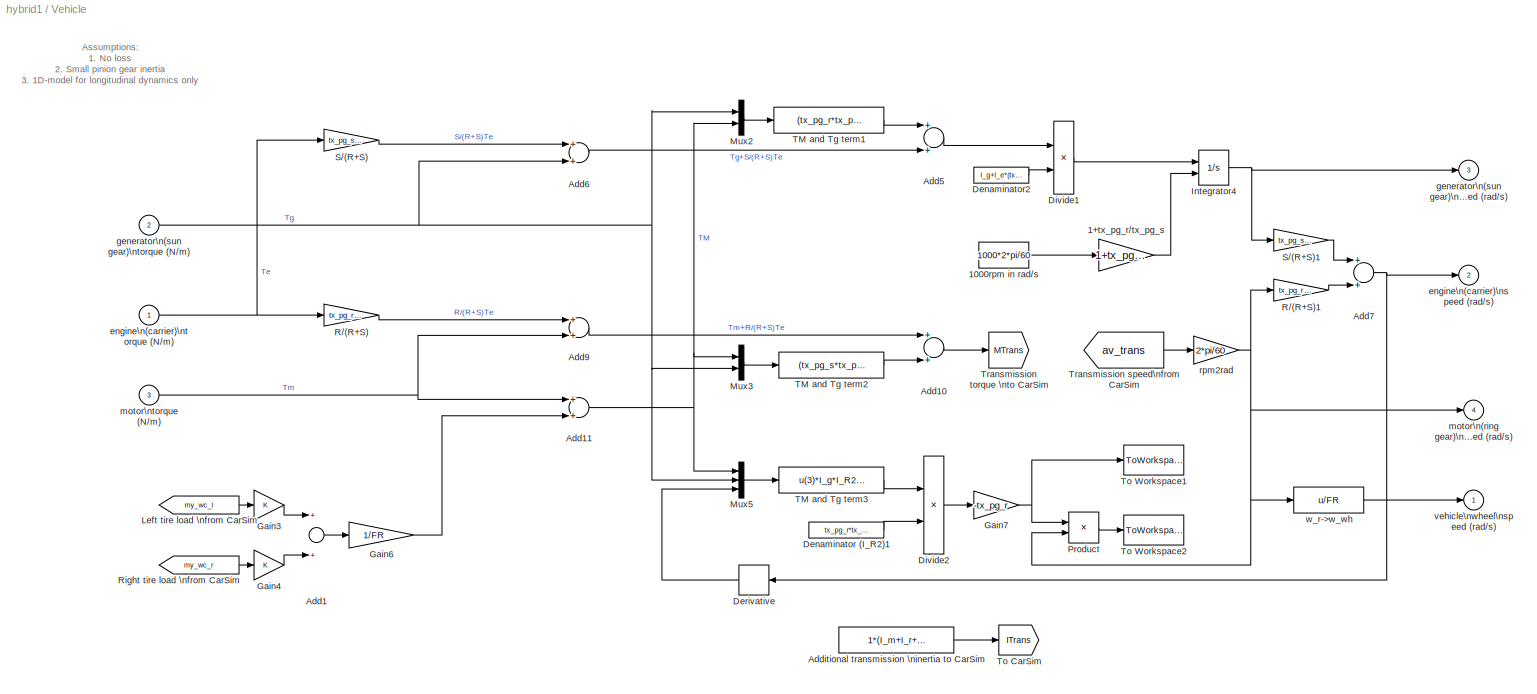
BLOCK [SubSystem] Vehicle
  Ports = [3, 4]
  RequestExecContextInheritance = off
  SID = 177
BLOCK [Gain] Vehicle/1+tx_pg_r//tx_pg_s
  Gain = 1+tx_pg_r/tx_pg_s
  SID = 316
BLOCK [Constant] Vehicle/1000rpm in rad//s
  SID = 317
  Value = 1000*2*pi/60
BLOCK [Sum] Vehicle/Add1
  InputSameDT = off
  OutDataTypeStr = Inherit: Inherit via internal rule
  Ports = [2, 1]
  SID = 257
  SaturateOnIntegerOverflow = off
BLOCK [Sum] Vehicle/Add10
  InputSameDT = off
  OutDataTypeStr = Inherit: Inherit via internal rule
  Ports = [2, 1]
  SID = 341
  SaturateOnIntegerOverflow = off
BLOCK [Sum] Vehicle/Add11
  InputSameDT = off
  OutDataTypeStr = Inherit: Inherit via internal rule
  Ports = [2, 1]
  SID = 348
  SaturateOnIntegerOverflow = off
BLOCK [Sum] Vehicle/Add5
  InputSameDT = off
  OutDataTypeStr = Inherit: Inherit via internal rule
  Ports = [2, 1]
  SID = 295
  SaturateOnIntegerOverflow = off
BLOCK [Sum] Vehicle/Add6
  InputSameDT = off
  OutDataTypeStr = Inherit: Inherit via internal rule
  Ports = [2, 1]
  SID = 296
  SaturateOnIntegerOverflow = off
BLOCK [Sum] Vehicle/Add7
  InputSameDT = off
  OutDataTypeStr = Inherit: Inherit via internal rule
  Ports = [2, 1]
  SID = 323
  SaturateOnIntegerOverflow = off
BLOCK [Sum] Vehicle/Add9
  InputSameDT = off
  OutDataTypeStr = Inherit: Inherit via internal rule
  Ports = [2, 1]
  SID = 339
  SaturateOnIntegerOverflow = off
BLOCK [Constant] Vehicle/Additional transmission \ninertia to CarSim
  SID = 343
  Value = 1*(I_m+I_r+I_e*(tx_pg_r*tx_pg_r*I_g+tx_pg_s*tx_pg_s*I_R2)/I_g/(tx_pg_s+tx_pg_r)^2)
BLOCK [Constant] Vehicle/Denaminator (I_R2)1
  SID = 425
  Value = tx_pg_r*tx_pg_r*I_g+tx_pg_s*tx_pg_s*I_R2
BLOCK [Constant] Vehicle/Denaminator2
  SID = 298
  Value = I_g+I_e*(tx_pg_r*tx_pg_r*I_g+tx_pg_s*tx_pg_s*I_R2)/I_R2/(tx_pg_s+tx_pg_r)^2
BLOCK [Derivative] Vehicle/Derivative
  SID = 423
BLOCK [Product] Vehicle/Divide1
  InputSameDT = off
  Inputs = */
  OutDataTypeStr = Inherit: Inherit via internal rule
  Ports = [2, 1]
  RndMeth = Floor
  SID = 299
  SaturateOnIntegerOverflow = off
BLOCK [Product] Vehicle/Divide2
  InputSameDT = off
  Inputs = */
  OutDataTypeStr = Inherit: Inherit via internal rule
  Ports = [2, 1]
  RndMeth = Floor
  SID = 424
  SaturateOnIntegerOverflow = off
BLOCK [Gain] Vehicle/Gain3
  OutDataTypeStr = Inherit: Inherit via internal rule
  ParamDataTypeStr = Inherit: Inherit via internal rule
  SID = 260
  SaturateOnIntegerOverflow = off
BLOCK [Gain] Vehicle/Gain4
  OutDataTypeStr = Inherit: Inherit via internal rule
  ParamDataTypeStr = Inherit: Inherit via internal rule
  SID = 261
  SaturateOnIntegerOverflow = off
BLOCK [Gain] Vehicle/Gain6
  Gain = 1/FR
  SID = 331
BLOCK [Gain] Vehicle/Gain7
  Gain = -tx_pg_r
  SID = 426
BLOCK [Integrator] Vehicle/Integrator4
  InitialConditionSource = external
  LimitOutput = on
  Ports = [2, 1]
  SID = 301
BLOCK [From] Vehicle/Left tire load \nfrom CarSim
  GotoTag = my_wc_l
  SID = 250
  TagVisibility = global
BLOCK [Mux] Vehicle/Mux2
  DisplayOption = bar
  Inputs = 2
  Ports = [2, 1]
  SID = 302
BLOCK [Mux] Vehicle/Mux3
  DisplayOption = bar
  Inputs = 2
  Ports = [2, 1]
  SID = 347
BLOCK [Mux] Vehicle/Mux5
  DisplayOption = bar
  Inputs = 3
  Ports = [3, 1]
  SID = 422
BLOCK [Product] Vehicle/Product
  Ports = [2, 1]
  RndMeth = Floor
  SID = 200
BLOCK [Gain] Vehicle/R//(R+S)
  Gain = tx_pg_r/(tx_pg_r+tx_pg_s)
  SID = 234
BLOCK [Gain] Vehicle/R//(R+S)1
  Gain = tx_pg_r/(tx_pg_r+tx_pg_s)
  SID = 321
BLOCK [From] Vehicle/Right tire load \nfrom CarSim
  GotoTag = my_wc_r
  SID = 251
  TagVisibility = global
BLOCK [Gain] Vehicle/S//(R+S)
  Gain = tx_pg_s/(tx_pg_r+tx_pg_s)
  SID = 294
BLOCK [Gain] Vehicle/S//(R+S)1
  Gain = tx_pg_s/(tx_pg_r+tx_pg_s)
  SID = 322
BLOCK [Fcn] Vehicle/TM and Tg term1
  Expr = (tx_pg_r*tx_pg_r*u(1)-tx_pg_r*tx_pg_s*u(2)) *I_e/I_R2/((tx_pg_s+tx_pg_r)^2)
  SID = 303
BLOCK [Fcn] Vehicle/TM and Tg term2
  Expr = (tx_pg_s*tx_pg_s*u(1)-tx_pg_r*tx_pg_s*u(2)) *I_e/I_g/((tx_pg_s+tx_pg_r)^2)
  SID = 346
BLOCK [Fcn] Vehicle/TM and Tg term3
  Expr = u(3)*I_g*I_R2*(tx_pg_r+tx_pg_s)-tx_pg_s*I_R2*u(2)-tx_pg_r*I_g*u(1)
  SID = 421
BLOCK [Goto] Vehicle/To CarSim
  GotoTag = ITrans
  SID = 344
  TagVisibility = global
BLOCK [ToWorkspace] Vehicle/To Workspace1
  MaxDataPoints = inf
  Ports = [1]
  SID = 205
  SampleTime = time_step
  VariableName = T_ring
BLOCK [ToWorkspace] Vehicle/To Workspace2
  MaxDataPoints = inf
  Ports = [1]
  SID = 206
  SampleTime = time_step
  VariableName = P_ring
BLOCK [From] Vehicle/Transmission speed\nfrom CarSim
  GotoTag = av_trans
  SID = 249
  TagVisibility = global
BLOCK [Goto] Vehicle/Transmission torque \nto CarSim
  GotoTag = MTrans
  SID = 235
  TagVisibility = global
BLOCK [Outport] Vehicle/engine\n(carrier)\nspeed (rad//s)
  IconDisplay = Port number
  Port = 2
  SID = 216
BLOCK [Inport] Vehicle/engine\n(carrier)\ntorque (N//m)
  IconDisplay = Port number
  SID = 179
BLOCK [Outport] Vehicle/generator\n(sun gear)\nspeed (rad//s)
  IconDisplay = Port number
  Port = 3
  SID = 217
BLOCK [Inport] Vehicle/generator\n(sun gear)\ntorque (N//m)
  IconDisplay = Port number
  Port = 2
  SID = 180
BLOCK [Outport] Vehicle/motor\n(ring gear)\nspeed (rad//s)
  IconDisplay = Port number
  Port = 4
  SID = 218
BLOCK [Inport] Vehicle/motor\ntorque (N//m)
  IconDisplay = Port number
  Port = 3
  SID = 181
BLOCK [Gain] Vehicle/rpm2rad
  Gain = 2*pi/60
  SID = 259
BLOCK [Outport] Vehicle/vehicle\nwheel\nspeed (rad//s)
  IconDisplay = Port number
  SID = 215
BLOCK [Fcn] Vehicle/w_r->w_wh
  Expr = u/FR
  SID = 214
BLOCK [Gain] km//h to mph
  Gain = 1/1.6
  SID = 449
BLOCK [Gain] km//h to mph1
  Gain = 1/1.6
  SID = 440
BLOCK [Gain] m//h --> mps
  Gain = 1/3600
  SID = 450
BLOCK [Scope] powers
  DataFormat = StructureWithTime
  Floating = off
  LimitDataPoints = off
  NumInputPorts = 4
  Ports = [4]
  SID = 221
  SampleTime = 0
  SaveName = ScopeData15
  TimeRange = 29.9995
  YMax = 3~40000~30000~40000
  YMin = 0~0~-20000~-20000
  ZoomMode = xonly
BLOCK [Scope] speeds
  DataFormat = StructureWithTime
  Floating = off
  LimitDataPoints = off
  NumInputPorts = 4
  Ports = [4]
  SID = 222
  SampleTime = 0
  SaveName = ScopeData8
  TickLabels = on
  TimeRange = 30
  YMax = 100~4000~10000~6000
  YMin = 0~0~-5000~0
BLOCK [Scope] torques
  DataFormat = StructureWithTime
  Floating = off
  LimitDataPoints = off
  NumInputPorts = 4
  Ports = [4]
  SID = 223
  SampleTime = 0
  SaveName = ScopeData7
  TickLabels = on
  TimeRange = 29.9995
  YMax = 1~100~50~300
  YMin = 0~0~-100~-100
  ZoomMode = xonly
BLOCK [Fcn] u1//u2
  Expr = u[1] / ( u[2] + eps*(u[2] == 0) )
  SID = 224
ANNOTATION (root): \n \n Hybrid Powertrain Simulation (Originally created by Univ. Michigan and modified by Yukio Watanabe)
ANNOTATION (root): MPG = fuel_distance/fuel_consum/3600*1000/740*264.17
ANNOTATION (root): P_m_req
ANNOTATION (root): sign convention: \n+: discharge -: charge
ANNOTATION Battery: Assumptions:\n1. Constant Temperature
ANNOTATION Battery/SOC\nalgorithm: SOC=(Max Ah capacity-Ah used)/Max Ah capacity
ANNOTATION Elec Motor: charge
ANNOTATION Elec Motor: disch
ANNOTATION Elec Motor: discharging\npower
ANNOTATION Engine: MPG = fuel_distance/fuel_consum/3600*1000/740*264.17
ANNOTATION Generator: charge
ANNOTATION Generator: disch
ANNOTATION Generator: discharging\npower
ANNOTATION Hybrid\nController/Brake: Td-Treg
ANNOTATION Hybrid\nController/Brake: max trq
ANNOTATION Hybrid\nController/Brake/gen control: Tg = Kp*(Wopt-W) + Ki*int(Wopt-W)
ANNOTATION Hybrid\nController/Drive/Power Manage: Auto
ANNOTATION Hybrid\nController/Drive/Power Manage: Manual
ANNOTATION Hybrid\nController/Drive/Power Manage: if soc>low and Pd Pengmax and soc>low\n Eng+Batt model: Peng = Pmax
ANNOTATION Hybrid\nController/Drive/engine speed: if W_spd > W_idle\n Eng_cmd = 1\nif W_spd < W_idle\n W_spd = W_idle\n Eng_cmd = T/Tmax
ANNOTATION Hybrid\nController/Drive/gen control: Tg = Kp*(Wopt-W) + Ki*int(Wopt-W)
ANNOTATION Hybrid\nController/Drive/motor control: if EV mode\n Pm = Pd;\nif Eng mode\n Pm = Pg-Pch;\nif Asist mode\n Pm = Pg+(Pd-Pemax)
ANNOTATION Hybrid\nController/pwr_demand: >0:acc; <0:brake
ANNOTATION Hybrid\nController/pwr_demand: max_brake_power
ANNOTATION Vehicle: Assumptions:\n1. No loss\n2. Small pinion gear inertia\n3. 1D-model for longitudinal dynamics only
LINE -1~0 _:1 -> Gain6:1
LINE Battery/Const:1 -> Battery/stop sim:enable
LINE Battery/From1:1 -> Battery/Mux:1
LINE Battery/From:1 -> Battery/Mux:2
NET Battery/Mux:1 -> Battery/Power\nlimit:1, Battery/bat:5
LINE Battery/Product1:1 -> Battery/bat:2
LINE Battery/SOC\nalgorithm/(A):1 -> Battery/SOC\nalgorithm/(sec->hrs):1
LINE Battery/SOC\nalgorithm/(sec->hrs):1 -> Battery/SOC\nalgorithm/Ah used:1
LINE Battery/SOC\nalgorithm/0 <= SOC <= 1:1 -> Battery/SOC\nalgorithm/SOC1:1
LINE Battery/SOC\nalgorithm/A-h\nremaining:1 -> Battery/SOC\nalgorithm/SOC:1
LINE Battery/SOC\nalgorithm/Ah used:1 -> Battery/SOC\nalgorithm/A-h\nremaining:1
LINE Battery/SOC\nalgorithm/Fcn1:1 -> Battery/SOC\nalgorithm/Ah used:2
LINE Battery/SOC\nalgorithm/Fcn:1 -> Battery/SOC\nalgorithm/SOC:2
LINE Battery/SOC\nalgorithm/SOC:1 -> Battery/SOC\nalgorithm/0 <= SOC <= 1:1
NET Battery/SOC\nalgorithm/max cap:1 -> Battery/SOC\nalgorithm/A-h\nremaining:2, Battery/SOC\nalgorithm/Fcn1:1, Battery/SOC\nalgorithm/Fcn:1
LINE Battery/SOC\nalgorithm/tmp\n(C):1 -> Battery/SOC\nalgorithm/max cap:1
NET Battery/SOC\nalgorithm:1 -> Battery/SOC:1, Battery/So:1, Battery/To Workspace:1, Battery/bat:1, Battery/limit power:1, Battery/pack\nVoc, Rint:1, Battery/stop sim:1
NET Battery/compute\ncurrent/Ibty=(Voc-(Voc^2-4RPbty)^.5)\n       -----------------------------\n(2*R):1 -> Battery/compute\ncurrent/limit current based on \nmax voltage during charge:1, Battery/compute\ncurrent/min charge current\nnot exceeded:1
LINE Battery/compute\ncurrent/Memory:1 -> Battery/compute\ncurrent/Goto <cs>2:1
LINE Battery/compute\ncurrent/Mux3:1 -> Battery/compute\ncurrent/Voc-I*R:1
LINE Battery/compute\ncurrent/Mux4:1 -> Battery/compute\ncurrent/Ibty=(Voc-(Voc^2-4RPbty)^.5)\n       -----------------------------\n(2*R):1
LINE Battery/compute\ncurrent/Mux5:1 -> Battery/compute\ncurrent/iabs min=(Voc-Vmax)//R:1
LINE Battery/compute\ncurrent/Pch_max=Imax*Vmax:1 -> Battery/compute\ncurrent/Memory:1
NET Battery/compute\ncurrent/Rint:1 -> Battery/compute\ncurrent/Mux3:3, Battery/compute\ncurrent/Mux4:3, Battery/compute\ncurrent/Mux5:3
LINE Battery/compute\ncurrent/Voc-I*R:1 -> Battery/compute\ncurrent/V_:1
NET Battery/compute\ncurrent/Voc:1 -> Battery/compute\ncurrent/Mux3:2, Battery/compute\ncurrent/Mux4:2, Battery/compute\ncurrent/Mux5:1
NET Battery/compute\ncurrent/ess max voltage*#batts:1 -> Battery/compute\ncurrent/Mux5:2, Battery/compute\ncurrent/Pch_max=Imax*Vmax:2
NET Battery/compute\ncurrent/iabs min=(Voc-Vmax)//R:1 -> Battery/compute\ncurrent/Pch_max=Imax*Vmax:1, Battery/compute\ncurrent/limit current based on \nmax voltage during charge:3, Battery/compute\ncurrent/min charge current\nnot exceeded:2
NET Battery/compute\ncurrent/limit current based on \nmax voltage during charge:1 -> Battery/compute\ncurrent/I_:1, Battery/compute\ncurrent/Mux3:1
LINE Battery/compute\ncurrent/limited output\npower (W):1 -> Battery/compute\ncurrent/Mux4:1
LINE Battery/compute\ncurrent/min charge current\nnot exceeded:1 -> Battery/compute\ncurrent/limit current based on \nmax voltage during charge:2
NET Battery/compute\ncurrent:1 -> Battery/A:1, Battery/SOC\nalgorithm:1, Battery/bat:4
NET Battery/compute\ncurrent:2 -> Battery/Product1:2, Battery/Vout:1
NET Battery/do ex calcs?1:1 -> Battery/SOC\nalgorithm:2, Battery/pack\nVoc, Rint:3
LINE Battery/limit power/Constant1:1 -> Battery/limit power/Relational\nOperator:2
LINE Battery/limit power/Constant2:1 -> Battery/limit power/Relational\nOperator3:2
LINE Battery/limit power/Constant3:1 -> Battery/limit power/no power req if\nSOC<0 and trying \nto discharge:3
LINE Battery/limit power/Constant4:1 -> Battery/limit power/no power req if\nSOC>.999 and trying \nto charge:1
LINE Battery/limit power/Constant5:1 -> Battery/limit power/SOC>=.999:2
LINE Battery/limit power/Constant6:1 -> Battery/limit power/charging\n(Preq is neg):2
LINE Battery/limit power/Gain:1 -> Battery/limit power/limit by battery max\nor min mc voltage\nor ess min:1
LINE Battery/limit power/Logical\nOperator1:1 -> Battery/limit power/no power req if\nSOC>.999 and trying \nto charge:2
LINE Battery/limit power/Logical\nOperator:1 -> Battery/limit power/no power req if\nSOC<0 and trying \nto discharge:2
LINE Battery/limit power/Memory1:1 -> Battery/limit power/Goto <cs>2:1
LINE Battery/limit power/Mux:1 -> Battery/limit power/discharge\nmax power allowed\n(-0.1 is for safety, to prevent\ntaking the square of a tiny\n-ive # in I=I(P) elsewhere):1
NET Battery/limit power/Pbty:1 -> Battery/limit power/Relational\nOperator3:1, Battery/limit power/charging\n(Preq is neg):1, Battery/limit power/min:1
LINE Battery/limit power/Relational\nOperator3:1 -> Battery/limit power/Logical\nOperator:2
LINE Battery/limit power/Relational\nOperator:1 -> Battery/limit power/Logical\nOperator:1
LINE Battery/limit power/Rint:1 -> Battery/limit power/Mux:3
NET Battery/limit power/SOC:1 -> Battery/limit power/Relational\nOperator:1, Battery/limit power/SOC>=.999:1
LINE Battery/limit power/SOC>=.999:1 -> Battery/limit power/Logical\nOperator1:1
NET Battery/limit power/Voc:1 -> Battery/limit power/Gain:1, Battery/limit power/Mux:1
LINE Battery/limit power/charging\n(Preq is neg):1 -> Battery/limit power/Logical\nOperator1:2
NET Battery/limit power/discharge\nmax power allowed\n(-0.1 is for safety, to prevent\ntaking the square of a tiny\n-ive # in I=I(P) elsewhere):1 -> Battery/limit power/Memory1:1, Battery/limit power/min:2
LINE Battery/limit power/ess minimum voltage:1 -> Battery/limit power/ess_module_num:1
LINE Battery/limit power/ess_module_num:1 -> Battery/limit power/limit by battery max\nor min mc voltage\nor ess min:3
LINE Battery/limit power/limit by battery max\nor min mc voltage\nor ess min:1 -> Battery/limit power/Mux:2
LINE Battery/limit power/mc minimum\nvoltage:1 -> Battery/limit power/limit by battery max\nor min mc voltage\nor ess min:2
LINE Battery/limit power/min:1 -> Battery/limit power/no power req if\nSOC<0 and trying \nto discharge:1
LINE Battery/limit power/no power req if\nSOC<0 and trying \nto discharge:1 -> Battery/limit power/no power req if\nSOC>.999 and trying \nto charge:3
LINE Battery/limit power/no power req if\nSOC>.999 and trying \nto charge:1 -> Battery/limit power/Pbty, limited:1
LINE Battery/limit power:1 -> Battery/compute\ncurrent:3
LINE Battery/pack\nVoc, Rint/#bty:1 -> Battery/pack\nVoc, Rint/Product:2
LINE Battery/pack\nVoc, Rint/Product:1 -> Battery/pack\nVoc, Rint/pack open-\ncircuit voltage:1
LINE Battery/pack\nVoc, Rint/Rchg\n(ohms)/Mux:1 -> Battery/pack\nVoc, Rint/Rchg\n(ohms)/S-function:1
LINE Battery/pack\nVoc, Rint/Rchg\n(ohms)/S-function:1 -> Battery/pack\nVoc, Rint/Rchg\n(ohms)/table out:1
LINE Battery/pack\nVoc, Rint/Rchg\n(ohms)/x0:1 -> Battery/pack\nVoc, Rint/Rchg\n(ohms)/Mux:1
LINE Battery/pack\nVoc, Rint/Rchg\n(ohms)/y0:1 -> Battery/pack\nVoc, Rint/Rchg\n(ohms)/Mux:2
LINE Battery/pack\nVoc, Rint/Rchg\n(ohms):1 -> Battery/pack\nVoc, Rint/resistance scale fun1:1
LINE Battery/pack\nVoc, Rint/Rdis\n(ohms)/Mux:1 -> Battery/pack\nVoc, Rint/Rdis\n(ohms)/S-function:1
LINE Battery/pack\nVoc, Rint/Rdis\n(ohms)/S-function:1 -> Battery/pack\nVoc, Rint/Rdis\n(ohms)/table out:1
LINE Battery/pack\nVoc, Rint/Rdis\n(ohms)/x0:1 -> Battery/pack\nVoc, Rint/Rdis\n(ohms)/Mux:1
LINE Battery/pack\nVoc, Rint/Rdis\n(ohms)/y0:1 -> Battery/pack\nVoc, Rint/Rdis\n(ohms)/Mux:2
LINE Battery/pack\nVoc, Rint/Rdis\n(ohms):1 -> Battery/pack\nVoc, Rint/resistance scale fun:1
NET Battery/pack\nVoc, Rint/SOC (prev):1 -> Battery/pack\nVoc, Rint/Rchg\n(ohms):2, Battery/pack\nVoc, Rint/Rdis\n(ohms):2, Battery/pack\nVoc, Rint/VOC\n(V):2
LINE Battery/pack\nVoc, Rint/Switch:1 -> Battery/pack\nVoc, Rint/pack\nresistance:1
LINE Battery/pack\nVoc, Rint/VOC\n(V)/Mux:1 -> Battery/pack\nVoc, Rint/VOC\n(V)/S-function:1
LINE Battery/pack\nVoc, Rint/VOC\n(V)/S-function:1 -> Battery/pack\nVoc, Rint/VOC\n(V)/table out:1
LINE Battery/pack\nVoc, Rint/VOC\n(V)/x0:1 -> Battery/pack\nVoc, Rint/VOC\n(V)/Mux:1
LINE Battery/pack\nVoc, Rint/VOC\n(V)/y0:1 -> Battery/pack\nVoc, Rint/VOC\n(V)/Mux:2
LINE Battery/pack\nVoc, Rint/VOC\n(V):1 -> Battery/pack\nVoc, Rint/Product:1
NET Battery/pack\nVoc, Rint/mod tmp \n (C):1 -> Battery/pack\nVoc, Rint/Rchg\n(ohms):1, Battery/pack\nVoc, Rint/Rdis\n(ohms):1, Battery/pack\nVoc, Rint/VOC\n(V):1
LINE Battery/pack\nVoc, Rint/req'd battery\npower (W):1 -> Battery/pack\nVoc, Rint/Switch:2
LINE Battery/pack\nVoc, Rint/resistance scale fun1:1 -> Battery/pack\nVoc, Rint/Switch:3
LINE Battery/pack\nVoc, Rint/resistance scale fun:1 -> Battery/pack\nVoc, Rint/Switch:1
NET Battery/pack\nVoc, Rint:1 -> Battery/Product1:1, Battery/Voc:1, Battery/bat:3, Battery/compute\ncurrent:1, Battery/limit power:3
NET Battery/pack\nVoc, Rint:2 -> Battery/compute\ncurrent:2, Battery/limit power:4
NET Battery/power req'd\ninto bus (W):1 -> Battery/limit power:2, Battery/pack\nVoc, Rint:2
LINE Battery/stop sim/Const:1 -> Battery/stop sim/Relational\nOperator:2
LINE Battery/stop sim/Relational\nOperator:1 -> Battery/stop sim/Stop Simulation:1
LINE Battery/stop sim/SOC:1 -> Battery/stop sim/Relational\nOperator:1
LINE Battery:1 -> Hybrid\nController:4
LINE Battery:2 -> Hybrid\nController:5
LINE CarSim S-Function:1 -> Demux2:1
LINE CarSim S-Function:2 -> Demux3:1
NET Clock:1 -> Display2:1, To Workspace:1
LINE Dead Zone1:1 -> Gain5:1
LINE Demux2:1 -> Goto:1
LINE Demux2:2 -> Goto1:1
LINE Demux2:3 -> Goto2:1
NET Demux3:1 -> Mux3:2, km//h to mph:1
NET Demux3:2 -> Mux3:1, km//h to mph1:1
LINE Demux3:3 -> Dead Zone1:1
NET Demux3:4 -> Transport\nDelay:1, torques:1
NET Demux:1 -> To Workspace5:1, speeds:4
NET Demux:2 -> Mux6:2, To Workspace6:1, speeds:3
NET Demux:3 -> Mux6:1, To Workspace4:1, speeds:2
LINE Elec Motor/Abs:1 -> Elec Motor/MinMax:2
NET Elec Motor/Efficiency\nLook-Up\nTable (2-D):1 -> Elec Motor/Product1:2, Elec Motor/charging\npower:2
NET Elec Motor/First-order lag:1 -> Elec Motor/Efficiency\nLook-Up\nTable (2-D):2, Elec Motor/motor torque\noutput (Nm):1, Elec Motor/motoring\nor braking\ntorque2:2
LINE Elec Motor/MinMax:1 -> Elec Motor/power1:1
NET Elec Motor/Motor\ndemand\nTorque (Nm):1 -> Elec Motor/Abs:1, Elec Motor/Sign:1
LINE Elec Motor/Power out \nis > 0 or < 0 ?:1 -> Elec Motor/net Power\n>0 discharge \n<0 charge:1
LINE Elec Motor/Product1:1 -> Elec Motor/Power out \nis > 0 or < 0 ?:1
LINE Elec Motor/Sign:1 -> Elec Motor/power1:2
LINE Elec Motor/charging\npower:1 -> Elec Motor/Power out \nis > 0 or < 0 ?:3
LINE Elec Motor/max torque:1 -> Elec Motor/MinMax:1
NET Elec Motor/motor\nspeed (rad//s):1 -> Elec Motor/Efficiency\nLook-Up\nTable (2-D):1, Elec Motor/max torque:1, Elec Motor/motoring\nor braking\ntorque2:1
NET Elec Motor/motoring\nor braking\ntorque2:1 -> Elec Motor/Power out \nis > 0 or < 0 ?:2, Elec Motor/Product1:1, Elec Motor/charging\npower:1
LINE Elec Motor/power1:1 -> Elec Motor/First-order lag:1
NET Elec Motor:1 -> Mux5:3, To Workspace9:1, Vehicle:3, torques:4
NET Elec Motor:2 -> Gain2:1, Power\nBus:2, powers:4
NET Engine/Engine on//off cmd (1//0):1 -> Engine/Scope:1, Engine/fuel, speed to T:2
LINE Engine/Gain:1 -> Engine/fule rate (kg//s):1
NET Engine/Integrator:1 -> Engine/To Workspace:1, Engine/fule in grams:1
NET Engine/We, Te to fuel:1 -> Engine/Gain:1, Engine/Integrator:1
NET Engine/Wengine (rad//s):1 -> Engine/We, Te to fuel:1, Engine/fuel, speed to T:1
NET Engine/fuel, speed to T:1 -> Engine/Te (Nm):1, Engine/We, Te to fuel:2
NET Engine:1 -> Mux5:1, Product:2, To Workspace7:1, Vehicle:1, torques:2
LINE From1:1 -> Mux7:4
LINE From2:1 -> Mux4:1
LINE From3:1 -> Mux7:2
LINE From4:1 -> Mux4:2
LINE From5:1 -> Mux7:3
LINE From6:1 -> Mux7:1
LINE From7:1 -> CarSim S-Function:2
LINE From:1 -> Mux8:2
LINE Fuel in grams:1 -> Mux2:2
NET Gain1:1 -> Mux1:1, To Workspace2:1
NET Gain2:1 -> Mux1:2, To Workspace3:1
LINE Gain3:1 -> To Workspace1:1
LINE Gain4:1 -> Mile//gallon:1
LINE Gain5:1 -> -1~0 _:1
LINE Gain6:1 -> Transport\nDelay1:1
LINE Gain7:1 -> Mux1:3
LINE Generator/Abs:1 -> Generator/MinMax:2
NET Generator/Efficiency\nLook-Up\nTable (2-D):1 -> Generator/Product1:2, Generator/charging\npower:2
NET Generator/First-order lag:1 -> Generator/Efficiency\nLook-Up\nTable (2-D):2, Generator/generator\ntorque\noutput:1, Generator/motoring\nor braking\ntorque2:2
LINE Generator/MinMax:1 -> Generator/power1:1
LINE Generator/Power out \nis > 0 or < 0 ?:1 -> Generator/net Power\n<0 charge the battery \n>0 discharge the battery:1
LINE Generator/Product1:1 -> Generator/Power out \nis > 0 or < 0 ?:1
LINE Generator/Sign:1 -> Generator/power1:2
LINE Generator/charging\npower:1 -> Generator/Power out \nis > 0 or < 0 ?:3
NET Generator/generator\ncommand\nTorque (Nm):1 -> Generator/Abs:1, Generator/Sign:1
NET Generator/generator\nspeed (rad//s):1 -> Generator/Efficiency\nLook-Up\nTable (2-D):1, Generator/max torque:1, Generator/motoring\nor braking\ntorque2:1
LINE Generator/max torque:1 -> Generator/MinMax:1
NET Generator/motoring\nor braking\ntorque2:1 -> Generator/Power out \nis > 0 or < 0 ?:2, Generator/Product1:1, Generator/charging\npower:1
LINE Generator/power1:1 -> Generator/First-order lag:1
NET Generator:1 -> Mux5:2, To Workspace8:1, Vehicle:2, torques:3
NET Generator:2 -> Gain1:1, Power\nBus:1, powers:3
LINE Hybrid\nController/1: drive\n-1: brake:1 -> Hybrid\nController/Demux:1
LINE Hybrid\nController/>0: on (1)\n< (-3000): off (-1):1 -> Hybrid\nController/1: drive\n-1: brake:2
LINE Hybrid\nController/>= 2: engine or\nengine + motor;\n< 2: motor only or\nregen brake:1 -> Hybrid\nController/First-order lag:1
LINE Hybrid\nController/Brake/>0:1 -> Hybrid\nController/Brake/friction\nbrake\ntorque\ncommand (Nm):1
LINE Hybrid\nController/Brake/Abs1:1 -> Hybrid\nController/Brake/MinMax:3
NET Hybrid\nController/Brake/Abs2:1 -> Hybrid\nController/Brake/MinMax:1, Hybrid\nController/Brake/Sum8:1
NET Hybrid\nController/Brake/Abs:1 -> Hybrid\nController/Brake/Look-Up\nTable:1, Hybrid\nController/Brake/Saturation:1
NET Hybrid\nController/Brake/Constant1:1 -> Hybrid\nController/Brake/Control Mode:1, Hybrid\nController/Brake/engine\ncommand (0~1)1:1
LINE Hybrid\nController/Brake/Constant2:1 -> Hybrid\nController/Brake/If regen:3
LINE Hybrid\nController/Brake/Constant3:1 -> Hybrid\nController/Brake/gen speed:1
LINE Hybrid\nController/Brake/Demux:1 -> Hybrid\nController/Brake/Mux2:1
LINE Hybrid\nController/Brake/Demux:2 -> Hybrid\nController/Brake/Terminator:1
LINE Hybrid\nController/Brake/Driver power\n requested (W):1 -> Hybrid\nController/Brake/Non-positive:1
LINE Hybrid\nController/Brake/Generator\nspeed(rad//s):1 -> Hybrid\nController/Brake/gen control:2
NET Hybrid\nController/Brake/If regen:1 -> Hybrid\nController/Brake/Make Tm\nnegative:1, Hybrid\nController/Brake/Sum8:2
LINE Hybrid\nController/Brake/Look-Up\nTable:1 -> Hybrid\nController/Brake/MinMax:2
LINE Hybrid\nController/Brake/Make Tm\nnegative1:1 -> Hybrid\nController/Brake/>0:1
LINE Hybrid\nController/Brake/Make Tm\nnegative:1 -> Hybrid\nController/Brake/motor\ntorque\ncommand (Nm):1
LINE Hybrid\nController/Brake/MinMax:1 -> Hybrid\nController/Brake/If regen:1
NET Hybrid\nController/Brake/Motor\n speed (rad//s):1 -> Hybrid\nController/Brake/Abs:1, Hybrid\nController/Brake/gen speed:2
LINE Hybrid\nController/Brake/Mux1:1 -> Hybrid\nController/Brake/P//w:1
LINE Hybrid\nController/Brake/Mux2:1 -> Hybrid\nController/Brake/Plimit//w:1
LINE Hybrid\nController/Brake/Non-positive:1 -> Hybrid\nController/Brake/Mux1:1
LINE Hybrid\nController/Brake/P//w:1 -> Hybrid\nController/Brake/Abs2:1
LINE Hybrid\nController/Brake/Plimit//w:1 -> Hybrid\nController/Brake/Abs1:1
LINE Hybrid\nController/Brake/Power\nlimit (W):1 -> Hybrid\nController/Brake/Demux:1
LINE Hybrid\nController/Brake/Regen\nControl/Logical\nOperator:1 -> Hybrid\nController/Brake/Regen\nControl/Use regen?\n:1
LINE Hybrid\nController/Brake/Regen\nControl/regen swith on:1 -> Hybrid\nController/Brake/Regen\nControl/Logical\nOperator:3
LINE Hybrid\nController/Brake/Regen\nControl/soc condition:1 -> Hybrid\nController/Brake/Regen\nControl/Logical\nOperator:2
LINE Hybrid\nController/Brake/Regen\nControl/soc:1 -> Hybrid\nController/Brake/Regen\nControl/soc condition:1
LINE Hybrid\nController/Brake/Regen\nControl/wh spd (rad//s):1 -> Hybrid\nController/Brake/Regen\nControl/wheel spd>= 0.4:1
LINE Hybrid\nController/Brake/Regen\nControl/wheel spd>= 0.4:1 -> Hybrid\nController/Brake/Regen\nControl/Logical\nOperator:1
LINE Hybrid\nController/Brake/Regen\nControl:1 -> Hybrid\nController/Brake/If regen:2
NET Hybrid\nController/Brake/Saturation:1 -> Hybrid\nController/Brake/Mux1:2, Hybrid\nController/Brake/Mux2:2
LINE Hybrid\nController/Brake/Sum8:1 -> Hybrid\nController/Brake/Make Tm\nnegative1:1
LINE Hybrid\nController/Brake/gen control/Abs:1 -> Hybrid\nController/Brake/gen control/MinMax:1
NET Hybrid\nController/Brake/gen control/Generator\ncurrent\n speed (rad//s):1 -> Hybrid\nController/Brake/gen control/Mux:2, Hybrid\nController/Brake/gen control/Sum1:2, Hybrid\nController/Brake/gen control/max torque:1, Hybrid\nController/Brake/gen control/power4:2
LINE Hybrid\nController/Brake/gen control/Integrator:1 -> Hybrid\nController/Brake/gen control/power3:1
LINE Hybrid\nController/Brake/gen control/MinMax:1 -> Hybrid\nController/Brake/gen control/power1:2
LINE Hybrid\nController/Brake/gen control/Mux:1 -> Hybrid\nController/Brake/gen control/gen speed:1
NET Hybrid\nController/Brake/gen control/Reference\nspeed (rad//s):1 -> Hybrid\nController/Brake/gen control/Mux:1, Hybrid\nController/Brake/gen control/Sum1:1
LINE Hybrid\nController/Brake/gen control/Sign:1 -> Hybrid\nController/Brake/gen control/power1:1
NET Hybrid\nController/Brake/gen control/Sum1:1 -> Hybrid\nController/Brake/gen control/Integrator:1, Hybrid\nController/Brake/gen control/power2:1
NET Hybrid\nController/Brake/gen control/Sum2:1 -> Hybrid\nController/Brake/gen control/Abs:1, Hybrid\nController/Brake/gen control/Sign:1
LINE Hybrid\nController/Brake/gen control/gc_ki_on:1 -> Hybrid\nController/Brake/gen control/power3:2
LINE Hybrid\nController/Brake/gen control/gc_kp_on:1 -> Hybrid\nController/Brake/gen control/power2:2
LINE Hybrid\nController/Brake/gen control/max torque:1 -> Hybrid\nController/Brake/gen control/MinMax:2
NET Hybrid\nController/Brake/gen control/power1:1 -> Hybrid\nController/Brake/gen control/generator\ntorque\ncommand (Nm):1, Hybrid\nController/Brake/gen control/power4:1
LINE Hybrid\nController/Brake/gen control/power2:1 -> Hybrid\nController/Brake/gen control/Sum2:2
LINE Hybrid\nController/Brake/gen control/power3:1 -> Hybrid\nController/Brake/gen control/Sum2:1
LINE Hybrid\nController/Brake/gen control/power4:1 -> Hybrid\nController/Brake/gen control/Pg:1
LINE Hybrid\nController/Brake/gen control:1 -> Hybrid\nController/Brake/generator\ntorque\ncommand (Nm):1
LINE Hybrid\nController/Brake/gen control:2 -> Hybrid\nController/Brake/Terminator1:1
LINE Hybrid\nController/Brake/gen speed/1+tx_pg_r//tx_pg_s:1 -> Hybrid\nController/Brake/gen speed/Sum1:1
LINE Hybrid\nController/Brake/gen speed/Ring Gear//Motor\ncurrent\nspeed (rad//s):1 -> Hybrid\nController/Brake/gen speed/tx_pg_r//tx_pg_s:1
LINE Hybrid\nController/Brake/gen speed/Saturation\nmin_gen,max_gen:1 -> Hybrid\nController/Brake/gen speed/Reference\ngenerator\nspeed (rad//s):1
LINE Hybrid\nController/Brake/gen speed/Sum1:1 -> Hybrid\nController/Brake/gen speed/Saturation\nmin_gen,max_gen:1
LINE Hybrid\nController/Brake/gen speed/Target\nengine\nspeed (rad//s):1 -> Hybrid\nController/Brake/gen speed/1+tx_pg_r//tx_pg_s:1
LINE Hybrid\nController/Brake/gen speed/tx_pg_r//tx_pg_s:1 -> Hybrid\nController/Brake/gen speed/Sum1:2
LINE Hybrid\nController/Brake/gen speed:1 -> Hybrid\nController/Brake/gen control:1
LINE Hybrid\nController/Brake/soc:1 -> Hybrid\nController/Brake/Regen\nControl:1
LINE Hybrid\nController/Brake/wheel\n speed (rad//s):1 -> Hybrid\nController/Brake/Regen\nControl:2
LINE Hybrid\nController/Brake:1 -> Hybrid\nController/Mux1:1
LINE Hybrid\nController/Brake:2 -> Hybrid\nController/Mux1:2
LINE Hybrid\nController/Brake:3 -> Hybrid\nController/Mux1:3
LINE Hybrid\nController/Brake:4 -> Hybrid\nController/Mux1:4
LINE Hybrid\nController/Brake:5 -> Hybrid\nController/Mux1:5
LINE Hybrid\nController/Constant1:1 -> Hybrid\nController/Gain1:1
LINE Hybrid\nController/Constant2:1 -> Hybrid\nController/Gain:1
NET Hybrid\nController/Demux:1 -> Hybrid\nController/>= 2: engine or\nengine + motor;\n< 2: motor only or\nregen brake:2, Hybrid\nController/To Workspace5:1, Hybrid\nController/control mode:1, Hybrid\nController/pw demand and mode:2
LINE Hybrid\nController/Demux:2 -> Hybrid\nController/friction\nbrake\ntorque (Nm):1
LINE Hybrid\nController/Demux:3 -> Hybrid\nController/engine\ncommand (0~1:1
LINE Hybrid\nController/Demux:4 -> Hybrid\nController/generator\ntorque\ncommand (Nm):1
LINE Hybrid\nController/Demux:5 -> Hybrid\nController/motor\ntorque\ncommand (Nm):1
NET Hybrid\nController/Drive/Constant1:1 -> Hybrid\nController/Drive/Manual Switch1:2, Hybrid\nController/Drive/Manual Switch:2, Hybrid\nController/Drive/friction\nbrake\ntorque (Nm):1
LINE Hybrid\nController/Drive/Demux:1 -> Hybrid\nController/Drive/charging control:2
LINE Hybrid\nController/Drive/Demux:2 -> Hybrid\nController/Drive/Terminator:1
LINE Hybrid\nController/Drive/Engine\n speed (rad//s):1 -> Hybrid\nController/Drive/Terminator1:1
LINE Hybrid\nController/Drive/Generator\n speed (rad//s):1 -> Hybrid\nController/Drive/gen control:2
LINE Hybrid\nController/Drive/Manual Switch1:1 -> Hybrid\nController/Drive/motor\ntorque\ncommand (Nm):1
LINE Hybrid\nController/Drive/Manual Switch:1 -> Hybrid\nController/Drive/generator\ntorque\ncommand (Nm):1
NET Hybrid\nController/Drive/Motor\n speed (rad//s):1 -> Hybrid\nController/Drive/gen speed:2, Hybrid\nController/Drive/motor control:5
NET Hybrid\nController/Drive/Power Manage/< soc_control:1 -> Hybrid\nController/Drive/Power Manage/Cut off low\nspeed:1, Hybrid\nController/Drive/Power Manage/Logical\nOperator2:1
LINE Hybrid\nController/Drive/Power Manage/>P_engmax:1 -> Hybrid\nController/Drive/Power Manage/Logical\nOperator1:1
LINE Hybrid\nController/Drive/Power Manage/>P_ev:1 -> Hybrid\nController/Drive/Power Manage/Logical\nOperator:1
LINE Hybrid\nController/Drive/Power Manage/Charging\npower\ndemand (W):1 -> Hybrid\nController/Drive/Power Manage/Sum2:1
LINE Hybrid\nController/Drive/Power Manage/Constant1:1 -> Hybrid\nController/Drive/Power Manage/if Eng+Batt:3
LINE Hybrid\nController/Drive/Power Manage/Constant3:1 -> Hybrid\nController/Drive/Power Manage/MinMax:1
NET Hybrid\nController/Drive/Power Manage/Constant4:1 -> Hybrid\nController/Drive/Power Manage/Cut off low\nspeed:3, Hybrid\nController/Drive/Power Manage/Pd>P_ev_mode:3
LINE Hybrid\nController/Drive/Power Manage/Constant5:1 -> Hybrid\nController/Drive/Power Manage/if Ev:3
LINE Hybrid\nController/Drive/Power Manage/Constant6:1 -> Hybrid\nController/Drive/Power Manage/Pd>P_eng_mode:3
LINE Hybrid\nController/Drive/Power Manage/Constant7:1 -> Hybrid\nController/Drive/Power Manage/if Ev:1
LINE Hybrid\nController/Drive/Power Manage/Constant8:1 -> Hybrid\nController/Drive/Power Manage/Manual Switch1:2
LINE Hybrid\nController/Drive/Power Manage/Cut off low\nspeed:1 -> Hybrid\nController/Drive/Power Manage/Logical\nOperator:2
LINE Hybrid\nController/Drive/Power Manage/Logical\nOperator1:1 -> Hybrid\nController/Drive/Power Manage/Logical\nOperator2:2
NET Hybrid\nController/Drive/Power Manage/Logical\nOperator2:1 -> Hybrid\nController/Drive/Power Manage/Debug:3, Hybrid\nController/Drive/Power Manage/Pd>P_eng_mode:2, Hybrid\nController/Drive/Power Manage/if Eng+Batt:2
NET Hybrid\nController/Drive/Power Manage/Logical\nOperator:1 -> Hybrid\nController/Drive/Power Manage/Debug:1, Hybrid\nController/Drive/Power Manage/Pd>P_ev_mode:2, Hybrid\nController/Drive/Power Manage/if Ev:2
LINE Hybrid\nController/Drive/Power Manage/Manual Switch1:1 -> Hybrid\nController/Drive/Power Manage/Power Mode\n1: Motor only\n2: Engine only\n3: Power assist:1
NET Hybrid\nController/Drive/Power Manage/MinMax:1 -> Hybrid\nController/Drive/Power Manage/Debug:4, Hybrid\nController/Drive/Power Manage/Engine Power\ndemand (W):1
LINE Hybrid\nController/Drive/Power Manage/Pd>P_eng_mode:1 -> Hybrid\nController/Drive/Power Manage/MinMax:2
NET Hybrid\nController/Drive/Power Manage/Pd>P_ev_mode:1 -> Hybrid\nController/Drive/Power Manage/Debug:2, Hybrid\nController/Drive/Power Manage/Pd>P_eng_mode:1
NET Hybrid\nController/Drive/Power Manage/Power\ndemand (W):1 -> Hybrid\nController/Drive/Power Manage/>P_engmax:1, Hybrid\nController/Drive/Power Manage/>P_ev:1, Hybrid\nController/Drive/Power Manage/Sum2:2
LINE Hybrid\nController/Drive/Power Manage/Sum2:1 -> Hybrid\nController/Drive/Power Manage/Pd>P_ev_mode:1
LINE Hybrid\nController/Drive/Power Manage/W_engineon:1 -> Hybrid\nController/Drive/Power Manage/Logical\nOperator:3
NET Hybrid\nController/Drive/Power Manage/Wheel\nSpeed (rad//s):1 -> Hybrid\nController/Drive/Power Manage/W_engineon:1, Hybrid\nController/Drive/Power Manage/wheel spd\n> 15 rad//s:1
LINE Hybrid\nController/Drive/Power Manage/if Eng+Batt:1 -> Hybrid\nController/Drive/Power Manage/Manual Switch1:1
LINE Hybrid\nController/Drive/Power Manage/if Ev:1 -> Hybrid\nController/Drive/Power Manage/if Eng+Batt:1
LINE Hybrid\nController/Drive/Power Manage/soc:1 -> Hybrid\nController/Drive/Power Manage/< soc_control:1
LINE Hybrid\nController/Drive/Power Manage/wheel spd\n> 15 rad//s:1 -> Hybrid\nController/Drive/Power Manage/Cut off low\nspeed:2
NET Hybrid\nController/Drive/Power Manage:1 -> Hybrid\nController/Drive/Debug:1, Hybrid\nController/Drive/To Workspace3:1, Hybrid\nController/Drive/engine speed:1
NET Hybrid\nController/Drive/Power Manage:2 -> Hybrid\nController/Drive/Control Mode:1, Hybrid\nController/Drive/engine speed:2, Hybrid\nController/Drive/motor control:2
LINE Hybrid\nController/Drive/Power\nlimits (W):1 -> Hybrid\nController/Drive/Demux:1
LINE Hybrid\nController/Drive/charging control/>0:1 -> Hybrid\nController/Drive/charging control/Charging\nPower (W):1
LINE Hybrid\nController/Drive/charging control/Abs1:1 -> Hybrid\nController/Drive/charging control/MinMax:1
LINE Hybrid\nController/Drive/charging control/Charging\nController\nGain:1 -> Hybrid\nController/Drive/charging control/Product:2
LINE Hybrid\nController/Drive/charging control/Charging\npower\nlimits:1 -> Hybrid\nController/Drive/charging control/Abs1:1
LINE Hybrid\nController/Drive/charging control/Constant1:1 -> Hybrid\nController/Drive/charging control/Product:1
LINE Hybrid\nController/Drive/charging control/Constant5:1 -> Hybrid\nController/Drive/charging control/Sum:2
LINE Hybrid\nController/Drive/charging control/MinMax:1 -> Hybrid\nController/Drive/charging control/>0:1
LINE Hybrid\nController/Drive/charging control/Product:1 -> Hybrid\nController/Drive/charging control/MinMax:2
LINE Hybrid\nController/Drive/charging control/Sum:1 -> Hybrid\nController/Drive/charging control/Charging\nController\nGain:1
LINE Hybrid\nController/Drive/charging control/soc:1 -> Hybrid\nController/Drive/charging control/Sum:1
NET Hybrid\nController/Drive/charging control:1 -> Hybrid\nController/Drive/Debug:4, Hybrid\nController/Drive/Power Manage:3, Hybrid\nController/Drive/To Workspace1:1, Hybrid\nController/Drive/motor control:4
LINE Hybrid\nController/Drive/engine speed/>= 1W 1:1 -> Hybrid\nController/Drive/engine speed/Engine\noperating\nspeed (rad//s):1
LINE Hybrid\nController/Drive/engine speed/>= 1W 2:1 -> Hybrid\nController/Drive/engine speed/Engine Cmd\n(on//off):1
LINE Hybrid\nController/Drive/engine speed/>= 1W :1 -> Hybrid\nController/Drive/engine speed/>= 1W 2:1
NET Hybrid\nController/Drive/engine speed/Constant1:1 -> Hybrid\nController/Drive/engine speed/>= 1W 1:3, Hybrid\nController/Drive/engine speed/Mux2:2
LINE Hybrid\nController/Drive/engine speed/Constant2:1 -> Hybrid\nController/Drive/engine speed/>= 1W :1
LINE Hybrid\nController/Drive/engine speed/Constant3:1 -> Hybrid\nController/Drive/engine speed/>= 1W :3
LINE Hybrid\nController/Drive/engine speed/Constant4:1 -> Hybrid\nController/Drive/engine speed/Mux1:2
LINE Hybrid\nController/Drive/engine speed/Constant9:1 -> Hybrid\nController/Drive/engine speed/not EV mode:2
NET Hybrid\nController/Drive/engine speed/Engine Power\nDemand (W):1 -> Hybrid\nController/Drive/engine speed/Mux2:1, Hybrid\nController/Drive/engine speed/define engine\noptimal speed\nbase on power\ndemand:1
LINE Hybrid\nController/Drive/engine speed/Mode#:1 -> Hybrid\nController/Drive/engine speed/not EV mode:1
LINE Hybrid\nController/Drive/engine speed/Mux1:1 -> Hybrid\nController/Drive/engine speed/T//Tmax:1
LINE Hybrid\nController/Drive/engine speed/Mux2:1 -> Hybrid\nController/Drive/engine speed/P//w:1
LINE Hybrid\nController/Drive/engine speed/P//w:1 -> Hybrid\nController/Drive/engine speed/Mux1:1
LINE Hybrid\nController/Drive/engine speed/T//Tmax:1 -> Hybrid\nController/Drive/engine speed/>= 1W 2:3
NET Hybrid\nController/Drive/engine speed/define engine\noptimal speed\nbase on power\ndemand:1 -> Hybrid\nController/Drive/engine speed/>= 1W 1:1, Hybrid\nController/Drive/engine speed/>= 1W 1:2, Hybrid\nController/Drive/engine speed/>= 1W 2:2
LINE Hybrid\nController/Drive/engine speed/not EV mode:1 -> Hybrid\nController/Drive/engine speed/>= 1W :2
LINE Hybrid\nController/Drive/engine speed:1 -> Hybrid\nController/Drive/engine on off\ncommand (0//1):1
LINE Hybrid\nController/Drive/engine speed:2 -> Hybrid\nController/Drive/gen speed:1
LINE Hybrid\nController/Drive/gen control/Abs:1 -> Hybrid\nController/Drive/gen control/MinMax:1
NET Hybrid\nController/Drive/gen control/Generator\ncurrent\n speed (rad//s):1 -> Hybrid\nController/Drive/gen control/Mux:2, Hybrid\nController/Drive/gen control/Sum1:2, Hybrid\nController/Drive/gen control/max torque:1, Hybrid\nController/Drive/gen control/power4:2
LINE Hybrid\nController/Drive/gen control/Integrator:1 -> Hybrid\nController/Drive/gen control/power3:1
LINE Hybrid\nController/Drive/gen control/MinMax:1 -> Hybrid\nController/Drive/gen control/power1:2
LINE Hybrid\nController/Drive/gen control/Mux:1 -> Hybrid\nController/Drive/gen control/gen speed:1
NET Hybrid\nController/Drive/gen control/Reference\nspeed (rad//s):1 -> Hybrid\nController/Drive/gen control/Mux:1, Hybrid\nController/Drive/gen control/Sum1:1
LINE Hybrid\nController/Drive/gen control/Sign:1 -> Hybrid\nController/Drive/gen control/power1:1
NET Hybrid\nController/Drive/gen control/Sum1:1 -> Hybrid\nController/Drive/gen control/Integrator:1, Hybrid\nController/Drive/gen control/power2:1
NET Hybrid\nController/Drive/gen control/Sum2:1 -> Hybrid\nController/Drive/gen control/Abs:1, Hybrid\nController/Drive/gen control/Sign:1
LINE Hybrid\nController/Drive/gen control/gc_ki_on:1 -> Hybrid\nController/Drive/gen control/power3:2
LINE Hybrid\nController/Drive/gen control/gc_kp_on:1 -> Hybrid\nController/Drive/gen control/power2:2
LINE Hybrid\nController/Drive/gen control/max torque:1 -> Hybrid\nController/Drive/gen control/MinMax:2
NET Hybrid\nController/Drive/gen control/power1:1 -> Hybrid\nController/Drive/gen control/generator\ntorque\ncommand (Nm):1, Hybrid\nController/Drive/gen control/power4:1
LINE Hybrid\nController/Drive/gen control/power2:1 -> Hybrid\nController/Drive/gen control/Sum2:2
LINE Hybrid\nController/Drive/gen control/power3:1 -> Hybrid\nController/Drive/gen control/Sum2:1
LINE Hybrid\nController/Drive/gen control/power4:1 -> Hybrid\nController/Drive/gen control/Pg:1
LINE Hybrid\nController/Drive/gen control:1 -> Hybrid\nController/Drive/Manual Switch:1
NET Hybrid\nController/Drive/gen control:2 -> Hybrid\nController/Drive/To Workspace4:1, Hybrid\nController/Drive/motor control:1
LINE Hybrid\nController/Drive/gen speed/1+tx_pg_r//tx_pg_s:1 -> Hybrid\nController/Drive/gen speed/Sum1:1
LINE Hybrid\nController/Drive/gen speed/Ring Gear//Motor\ncurrent\nspeed (rad//s):1 -> Hybrid\nController/Drive/gen speed/tx_pg_r//tx_pg_s:1
LINE Hybrid\nController/Drive/gen speed/Saturation\nmin_gen,max_gen:1 -> Hybrid\nController/Drive/gen speed/Reference\ngenerator\nspeed (rad//s):1
LINE Hybrid\nController/Drive/gen speed/Sum1:1 -> Hybrid\nController/Drive/gen speed/Saturation\nmin_gen,max_gen:1
LINE Hybrid\nController/Drive/gen speed/Target\nengine\nspeed (rad//s):1 -> Hybrid\nController/Drive/gen speed/1+tx_pg_r//tx_pg_s:1
LINE Hybrid\nController/Drive/gen speed/tx_pg_r//tx_pg_s:1 -> Hybrid\nController/Drive/gen speed/Sum1:2
LINE Hybrid\nController/Drive/gen speed:1 -> Hybrid\nController/Drive/gen control:1
LINE Hybrid\nController/Drive/motor control/Abs:1 -> Hybrid\nController/Drive/motor control/MinMax:1
LINE Hybrid\nController/Drive/motor control/Constant6:1 -> Hybrid\nController/Drive/motor control/Sum1:3
NET Hybrid\nController/Drive/motor control/Cut-off\n (< 100 rad//s) :1 -> Hybrid\nController/Drive/motor control/cmd motor T.:3, Hybrid\nController/Drive/motor control/command\nmotor\ntorque (Nm):1
NET Hybrid\nController/Drive/motor control/Gain:1 -> Hybrid\nController/Drive/motor control/Sum1:1, Hybrid\nController/Drive/motor control/Sum2:1
LINE Hybrid\nController/Drive/motor control/MinMax:1 -> Hybrid\nController/Drive/motor control/power1:2
NET Hybrid\nController/Drive/motor control/Mode#:1 -> Hybrid\nController/Drive/motor control/if Asist:2, Hybrid\nController/Drive/motor control/if Ev:2
NET Hybrid\nController/Drive/motor control/Motor\n speed (rad//s):1 -> Hybrid\nController/Drive/motor control/Cut-off\n (< 100 rad//s) :2, Hybrid\nController/Drive/motor control/Saturation:1, Hybrid\nController/Drive/motor control/max torque:1
LINE Hybrid\nController/Drive/motor control/Mux2:1 -> Hybrid\nController/Drive/motor control/P//w:1
NET Hybrid\nController/Drive/motor control/P//w:1 -> Hybrid\nController/Drive/motor control/Abs:1, Hybrid\nController/Drive/motor control/Sign:1, Hybrid\nController/Drive/motor control/cmd motor T.:2
LINE Hybrid\nController/Drive/motor control/Pch:1 -> Hybrid\nController/Drive/motor control/Sum2:2
NET Hybrid\nController/Drive/motor control/Pd:1 -> Hybrid\nController/Drive/motor control/Sum1:2, Hybrid\nController/Drive/motor control/if Ev:3
LINE Hybrid\nController/Drive/motor control/Pg:1 -> Hybrid\nController/Drive/motor control/Gain:1
LINE Hybrid\nController/Drive/motor control/Positive only:1 -> Hybrid\nController/Drive/motor control/Cut-off\n (< 100 rad//s) :3
LINE Hybrid\nController/Drive/motor control/Saturation:1 -> Hybrid\nController/Drive/motor control/Mux2:2
LINE Hybrid\nController/Drive/motor control/Sign:1 -> Hybrid\nController/Drive/motor control/power1:1
LINE Hybrid\nController/Drive/motor control/Sum1:1 -> Hybrid\nController/Drive/motor control/if Asist:1
LINE Hybrid\nController/Drive/motor control/Sum2:1 -> Hybrid\nController/Drive/motor control/if Ev:1
NET Hybrid\nController/Drive/motor control/if Asist:1 -> Hybrid\nController/Drive/motor control/Mux2:1, Hybrid\nController/Drive/motor control/To Workspace2:1, Hybrid\nController/Drive/motor control/cmd motor T.:1
LINE Hybrid\nController/Drive/motor control/if Ev:1 -> Hybrid\nController/Drive/motor control/if Asist:3
LINE Hybrid\nController/Drive/motor control/max torque:1 -> Hybrid\nController/Drive/motor control/MinMax:2
NET Hybrid\nController/Drive/motor control/power1:1 -> Hybrid\nController/Drive/motor control/Cut-off\n (< 100 rad//s) :1, Hybrid\nController/Drive/motor control/Positive only:1
NET Hybrid\nController/Drive/motor control:1 -> Hybrid\nController/Drive/Debug:2, Hybrid\nController/Drive/Manual Switch1:1
NET Hybrid\nController/Drive/pwr requested:1 -> Hybrid\nController/Drive/Debug:3, Hybrid\nController/Drive/Power Manage:1, Hybrid\nController/Drive/To Workspace2:1, Hybrid\nController/Drive/motor control:3
NET Hybrid\nController/Drive/soc:1 -> Hybrid\nController/Drive/Power Manage:2, Hybrid\nController/Drive/charging control:1
LINE Hybrid\nController/Drive/wheel\n speed (rad//s):1 -> Hybrid\nController/Drive/Power Manage:4
LINE Hybrid\nController/Drive:1 -> Hybrid\nController/Mux:1
LINE Hybrid\nController/Drive:2 -> Hybrid\nController/Mux:2
LINE Hybrid\nController/Drive:3 -> Hybrid\nController/Mux:3
LINE Hybrid\nController/Drive:4 -> Hybrid\nController/Mux:4
LINE Hybrid\nController/Drive:5 -> Hybrid\nController/Mux:5
LINE Hybrid\nController/First-order lag:1 -> Hybrid\nController/Goto1:1
LINE Hybrid\nController/Gain1:1 -> Hybrid\nController/Sum2:1
NET Hybrid\nController/Gain:1 -> Hybrid\nController/>= 2: engine or\nengine + motor;\n< 2: motor only or\nregen brake:3, Hybrid\nController/Sum2:2
LINE Hybrid\nController/Mux1:1 -> Hybrid\nController/1: drive\n-1: brake:3
LINE Hybrid\nController/Mux:1 -> Hybrid\nController/1: drive\n-1: brake:1
LINE Hybrid\nController/Sum2:1 -> Hybrid\nController/>= 2: engine or\nengine + motor;\n< 2: motor only or\nregen brake:1
LINE Hybrid\nController/Wengin:1 -> Hybrid\nController/Drive:5
NET Hybrid\nController/Wgen:1 -> Hybrid\nController/Brake:5, Hybrid\nController/Drive:6
NET Hybrid\nController/Wmotor:1 -> Hybrid\nController/Brake:6, Hybrid\nController/Drive:7
NET Hybrid\nController/Wwheel:1 -> Hybrid\nController/Brake:2, Hybrid\nController/Drive:2
LINE Hybrid\nController/acc:1 -> Hybrid\nController/pwr_demand:1
LINE Hybrid\nController/dec:1 -> Hybrid\nController/pwr_demand:2
NET Hybrid\nController/power\nlimits:1 -> Hybrid\nController/Brake:4, Hybrid\nController/Drive:4
LINE Hybrid\nController/pwr_demand/Accel cmd:1 -> Hybrid\nController/pwr_demand/Product:2
LINE Hybrid\nController/pwr_demand/Constant:1 -> Hybrid\nController/pwr_demand/Product:1
LINE Hybrid\nController/pwr_demand/Decel cmd:1 -> Hybrid\nController/pwr_demand/Max braking torqu:1
LINE Hybrid\nController/pwr_demand/Max braking torqu:1 -> Hybrid\nController/pwr_demand/Sum6:2
LINE Hybrid\nController/pwr_demand/Product:1 -> Hybrid\nController/pwr_demand/Sum6:1
LINE Hybrid\nController/pwr_demand/Sum6:1 -> Hybrid\nController/pwr_demand/pwr dmd (W):1
NET Hybrid\nController/pwr_demand:1 -> Hybrid\nController/>0: on (1)\n< (-3000): off (-1):1, Hybrid\nController/Brake:1, Hybrid\nController/Drive:1, Hybrid\nController/pw demand and mode:1
NET Hybrid\nController/soc:1 -> Hybrid\nController/Brake:3, Hybrid\nController/Drive:3
NET Hybrid\nController:1 -> Mux8:1, powers:1
LINE Hybrid\nController:2 -> Terminator:1
LINE Hybrid\nController:3 -> Engine:1
LINE Hybrid\nController:4 -> Generator:1
LINE Hybrid\nController:5 -> Elec Motor:1
NET Integrator:1 -> Mile:1, Mux2:1, To Workspace12:1
LINE Mux1:1 -> CarSim S-Function:3
LINE Mux2:1 -> u1//u2:1
LINE Mux3:1 -> speeds:1
LINE Mux4:1 -> CarSim S-Function:1
LINE Mux5:1 -> CarSim S-Function:4
LINE Mux6:1 -> CarSim S-Function:5
LINE Mux7:1 -> CarSim S-Function:6
LINE Mux8:1 -> CarSim S-Function:7
LINE Mux:1 -> RPM:1
LINE Power\nBus/Gain3:1 -> Power\nBus/To Workspace:1
LINE Power\nBus/P_generator:1 -> Power\nBus/Sum:1
LINE Power\nBus/P_motor:1 -> Power\nBus/Sum:2
NET Power\nBus/Sum:1 -> Power\nBus/Gain3:1, Power\nBus/P_bat:1
NET Power\nBus:1 -> Battery:1, Gain7:1
NET Product:1 -> Gain3:1, powers:2
LINE RPM:1 -> Demux:1
LINE Transport\nDelay1:1 -> Hybrid\nController:2
LINE Transport\nDelay:1 -> Hybrid\nController:1
LINE Vehicle/1+tx_pg_r//tx_pg_s:1 -> Vehicle/Integrator4:2
LINE Vehicle/1000rpm in rad//s:1 -> Vehicle/1+tx_pg_r//tx_pg_s:1
LINE Vehicle/Add10:1 -> Vehicle/Transmission torque \nto CarSim:1
NET Vehicle/Add11:1 -> Vehicle/Mux2:2, Vehicle/Mux3:1, Vehicle/Mux5:1
LINE Vehicle/Add1:1 -> Vehicle/Gain6:1
LINE Vehicle/Add5:1 -> Vehicle/Divide1:1
LINE Vehicle/Add6:1 -> Vehicle/Add5:2
NET Vehicle/Add7:1 -> Vehicle/Derivative:1, Vehicle/engine\n(carrier)\nspeed (rad//s):1
LINE Vehicle/Add9:1 -> Vehicle/Add10:1
LINE Vehicle/Additional transmission \ninertia to CarSim:1 -> Vehicle/To CarSim:1
LINE Vehicle/Denaminator (I_R2)1:1 -> Vehicle/Divide2:2
LINE Vehicle/Denaminator2:1 -> Vehicle/Divide1:2
LINE Vehicle/Derivative:1 -> Vehicle/Mux5:3
LINE Vehicle/Divide1:1 -> Vehicle/Integrator4:1
LINE Vehicle/Divide2:1 -> Vehicle/Gain7:1
LINE Vehicle/Gain3:1 -> Vehicle/Add1:1
LINE Vehicle/Gain4:1 -> Vehicle/Add1:2
LINE Vehicle/Gain6:1 -> Vehicle/Add11:2
NET Vehicle/Gain7:1 -> Vehicle/Product:1, Vehicle/To Workspace1:1
NET Vehicle/Integrator4:1 -> Vehicle/S//(R+S)1:1, Vehicle/generator\n(sun gear)\nspeed (rad//s):1
LINE Vehicle/Left tire load \nfrom CarSim:1 -> Vehicle/Gain3:1
LINE Vehicle/Mux2:1 -> Vehicle/TM and Tg term1:1
LINE Vehicle/Mux3:1 -> Vehicle/TM and Tg term2:1
LINE Vehicle/Mux5:1 -> Vehicle/TM and Tg term3:1
LINE Vehicle/Product:1 -> Vehicle/To Workspace2:1
LINE Vehicle/R//(R+S)1:1 -> Vehicle/Add7:2
LINE Vehicle/R//(R+S):1 -> Vehicle/Add9:1
LINE Vehicle/Right tire load \nfrom CarSim:1 -> Vehicle/Gain4:1
LINE Vehicle/S//(R+S)1:1 -> Vehicle/Add7:1
LINE Vehicle/S//(R+S):1 -> Vehicle/Add6:1
LINE Vehicle/TM and Tg term1:1 -> Vehicle/Add5:1
LINE Vehicle/TM and Tg term2:1 -> Vehicle/Add10:2
LINE Vehicle/TM and Tg term3:1 -> Vehicle/Divide2:1
LINE Vehicle/Transmission speed\nfrom CarSim:1 -> Vehicle/rpm2rad:1
NET Vehicle/engine\n(carrier)\ntorque (N//m):1 -> Vehicle/R//(R+S):1, Vehicle/S//(R+S):1
NET Vehicle/generator\n(sun gear)\ntorque (N//m):1 -> Vehicle/Add6:2, Vehicle/Mux2:1, Vehicle/Mux3:2, Vehicle/Mux5:2
NET Vehicle/motor\ntorque (N//m):1 -> Vehicle/Add11:1, Vehicle/Add9:2
NET Vehicle/rpm2rad:1 -> Vehicle/Product:2, Vehicle/R//(R+S)1:1, Vehicle/motor\n(ring gear)\nspeed (rad//s):1, Vehicle/w_r->w_wh:1
LINE Vehicle/w_r->w_wh:1 -> Vehicle/vehicle\nwheel\nspeed (rad//s):1
LINE Vehicle:1 -> Hybrid\nController:3
NET Vehicle:2 -> Engine:2, Hybrid\nController:6, Mux:3, Product:1
NET Vehicle:3 -> Generator:2, Hybrid\nController:7, Mux:2
NET Vehicle:4 -> Elec Motor:2, Hybrid\nController:8, Mux:1
LINE km//h to mph1:1 -> To Workspace10:1
NET km//h to mph:1 -> To Workspace11:1, m//h --> mps:1
LINE m//h --> mps:1 -> Integrator:1
LINE u1//u2:1 -> Gain4:1
note: NET lines group one-source signal fan-out (src -> all destinations, sorted); 1:1 wires keep LINE
